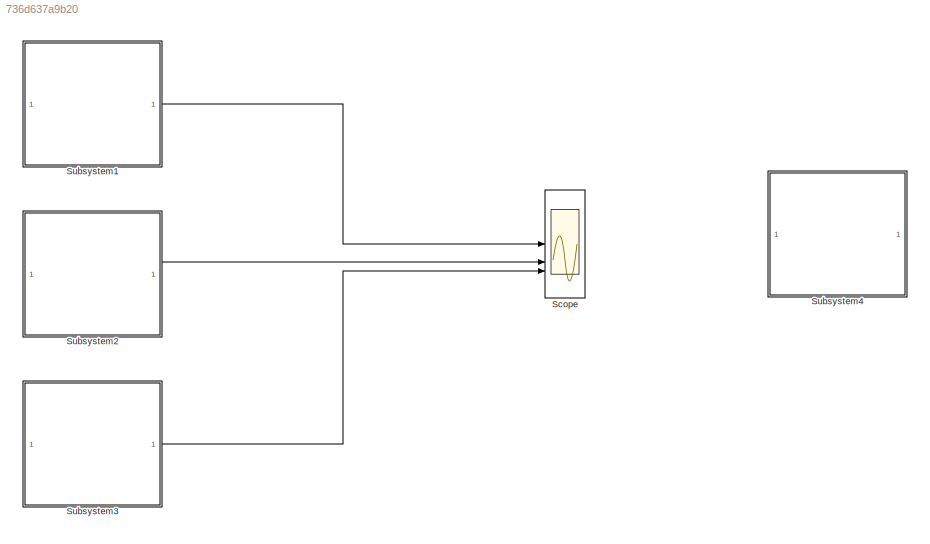
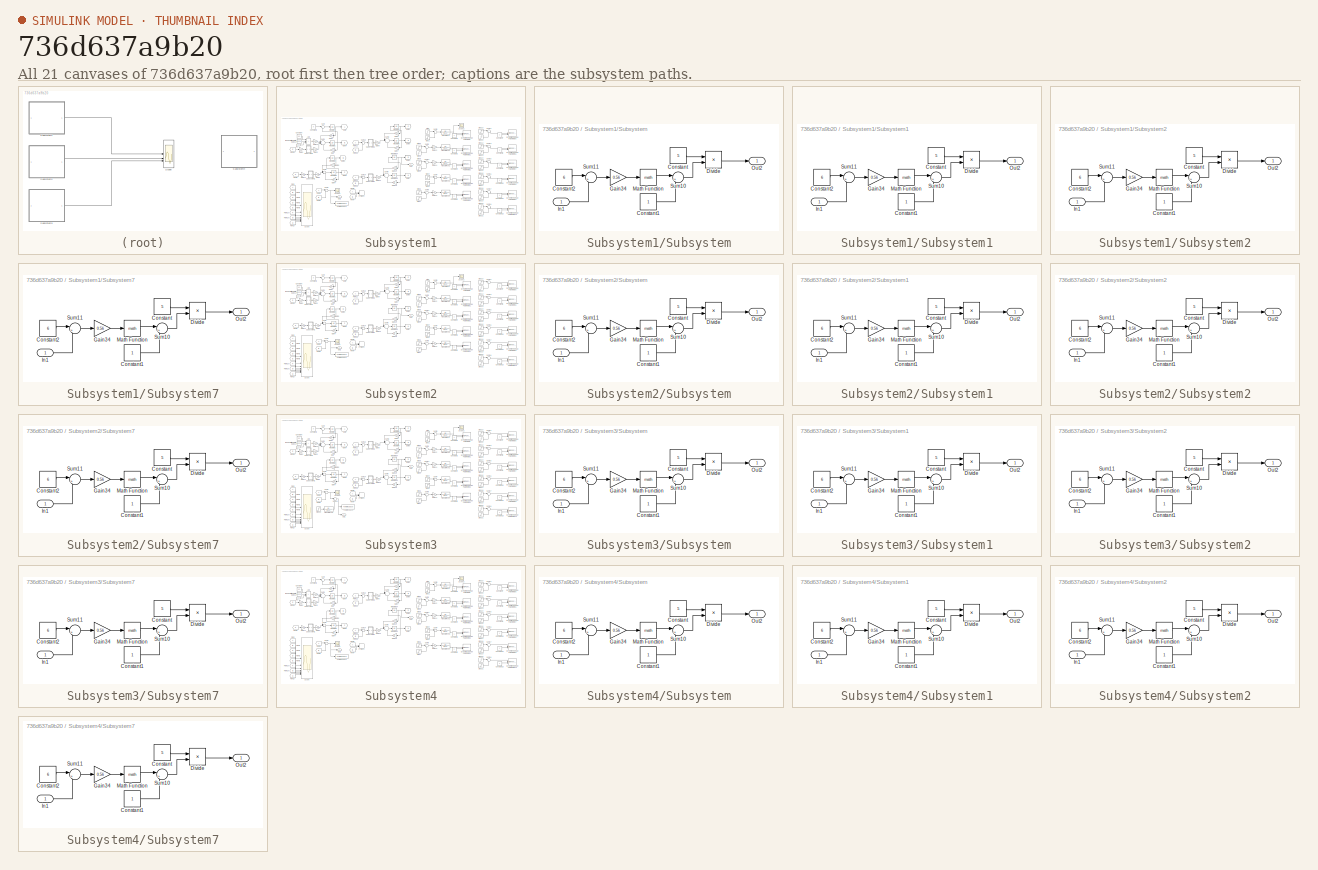
[diagram: thumbnail index - all 21 canvases of the model, root first then tree order]
MODEL slx_736d637a9b20
KIND model
CONFIG AbsTol = auto
CONFIG EnableMultiTasking = off
CONFIG FixedStep = auto
CONFIG MaxStep = auto
CONFIG MinStep = auto
CONFIG RelTol = 1e-3
CONFIG SampleTimeConstraint = Unconstrained
CONFIG SolverName = VariableStepAuto
CONFIG StartTime = 0.0
CONFIG StopTime = 11.0
BLOCK [Scope] Scope
  Floating = off
  NumInputPorts = 3
  ScopeSpecificationString = Simulink.scopes.TimeScopeBlockCfg('CurrentConfiguration', extmgr.ConfigurationSet(extmgr.Configuration('Core','General UI',true),extmgr.Configuration('Core','Source UI',true),extmgr.Configuration('Sources','WiredSimulink',true,'DataLoggingVariableName','ScopeData1'),extmgr.Configuration('Visuals','Time Domain',true,'SerializedDisplays',{struct('MinYLimReal','-0.1622','MaxYLimReal','0.91789','YLabe...<+1518ch>
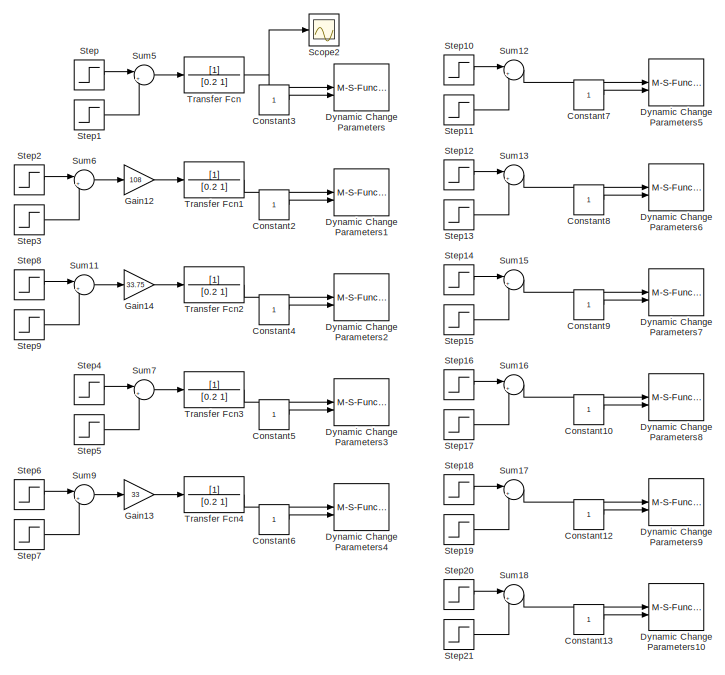
[diagram: Subsystem1 - part 1/2, right side, full height]
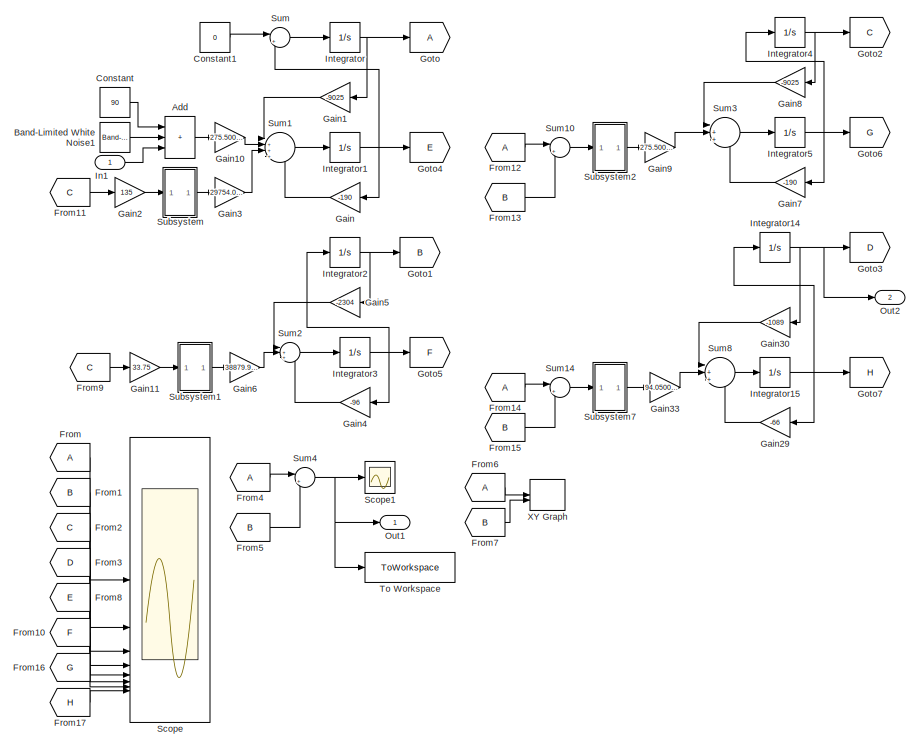
[diagram: Subsystem1 - part 2/2, left side, full height]
BLOCK [SubSystem] Subsystem1
BLOCK [Sum] Subsystem1/Add
  IconShape = rectangular
  Inputs = +++
BLOCK [Reference] Subsystem1/Band-Limited White Noise1  REF=simulink/Sources/Band-Limited
White Noise
  SourceBlock = simulink/Sources/Band-Limited\nWhite Noise
  SourceType = Band-Limited White Noise.
BLOCK [Constant] Subsystem1/Constant
  Value = 90
BLOCK [Constant] Subsystem1/Constant1
  Value = 0
BLOCK [Constant] Subsystem1/Constant10
BLOCK [Constant] Subsystem1/Constant12
BLOCK [Constant] Subsystem1/Constant13
BLOCK [Constant] Subsystem1/Constant2
BLOCK [Constant] Subsystem1/Constant3
BLOCK [Constant] Subsystem1/Constant4
BLOCK [Constant] Subsystem1/Constant5
BLOCK [Constant] Subsystem1/Constant6
BLOCK [Constant] Subsystem1/Constant7
BLOCK [Constant] Subsystem1/Constant8
BLOCK [Constant] Subsystem1/Constant9
BLOCK [M-S-Function] Subsystem1/Dynamic Change Parameters
  FunctionName = Sfun_DCP
  Parameters = block_name,par_name,sample_time,dimension
  StopFcn = close(clf)
BLOCK [M-S-Function] Subsystem1/Dynamic Change Parameters1
  FunctionName = Sfun_DCP
  Parameters = block_name,par_name,sample_time,dimension
  StopFcn = close(clf)
BLOCK [M-S-Function] Subsystem1/Dynamic Change Parameters10
  FunctionName = Sfun_DCP
  Parameters = block_name,par_name,sample_time,dimension
  StopFcn = close(clf)
BLOCK [M-S-Function] Subsystem1/Dynamic Change Parameters2
  FunctionName = Sfun_DCP
  Parameters = block_name,par_name,sample_time,dimension
  StopFcn = close(clf)
BLOCK [M-S-Function] Subsystem1/Dynamic Change Parameters3
  FunctionName = Sfun_DCP
  Parameters = block_name,par_name,sample_time,dimension
  StopFcn = close(clf)
BLOCK [M-S-Function] Subsystem1/Dynamic Change Parameters4
  FunctionName = Sfun_DCP
  Parameters = block_name,par_name,sample_time,dimension
  StopFcn = close(clf)
BLOCK [M-S-Function] Subsystem1/Dynamic Change Parameters5
  FunctionName = Sfun_DCP
  Parameters = block_name,par_name,sample_time,dimension
  StopFcn = close(clf)
BLOCK [M-S-Function] Subsystem1/Dynamic Change Parameters6
  FunctionName = Sfun_DCP
  Parameters = block_name,par_name,sample_time,dimension
  StopFcn = close(clf)
BLOCK [M-S-Function] Subsystem1/Dynamic Change Parameters7
  FunctionName = Sfun_DCP
  Parameters = block_name,par_name,sample_time,dimension
  StopFcn = close(clf)
BLOCK [M-S-Function] Subsystem1/Dynamic Change Parameters8
  FunctionName = Sfun_DCP
  Parameters = block_name,par_name,sample_time,dimension
  StopFcn = close(clf)
BLOCK [M-S-Function] Subsystem1/Dynamic Change Parameters9
  FunctionName = Sfun_DCP
  Parameters = block_name,par_name,sample_time,dimension
  StopFcn = close(clf)
BLOCK [From] Subsystem1/From
BLOCK [From] Subsystem1/From1
  GotoTag = B
BLOCK [From] Subsystem1/From10
  GotoTag = F
BLOCK [From] Subsystem1/From11
  GotoTag = C
BLOCK [From] Subsystem1/From12
BLOCK [From] Subsystem1/From13
  GotoTag = B
BLOCK [From] Subsystem1/From14
BLOCK [From] Subsystem1/From15
  GotoTag = B
BLOCK [From] Subsystem1/From16
  GotoTag = G
BLOCK [From] Subsystem1/From17
  GotoTag = H
BLOCK [From] Subsystem1/From2
  GotoTag = C
BLOCK [From] Subsystem1/From3
  GotoTag = D
BLOCK [From] Subsystem1/From4
BLOCK [From] Subsystem1/From5
  GotoTag = B
BLOCK [From] Subsystem1/From6
BLOCK [From] Subsystem1/From7
  GotoTag = B
BLOCK [From] Subsystem1/From8
  GotoTag = E
BLOCK [From] Subsystem1/From9
  GotoTag = C
BLOCK [Gain] Subsystem1/Gain
  Gain = -190
BLOCK [Gain] Subsystem1/Gain1
  Gain = -9025
BLOCK [Gain] Subsystem1/Gain10
  Gain = 275.500096235633
BLOCK [Gain] Subsystem1/Gain11
  Gain = 33.75
BLOCK [Gain] Subsystem1/Gain12
  Gain = 108
BLOCK [Gain] Subsystem1/Gain13
  Gain = 33
BLOCK [Gain] Subsystem1/Gain14
  Gain = 33.75
BLOCK [Gain] Subsystem1/Gain2
  Gain = 135
BLOCK [Gain] Subsystem1/Gain29
  Gain = -66
BLOCK [Gain] Subsystem1/Gain3
  Gain = 29754.0103934484
BLOCK [Gain] Subsystem1/Gain30
  Gain = -1089
BLOCK [Gain] Subsystem1/Gain33
  Gain = 94.0500501438536
BLOCK [Gain] Subsystem1/Gain4
  Gain = -96
BLOCK [Gain] Subsystem1/Gain5
  Gain = -2304
BLOCK [Gain] Subsystem1/Gain6
  Gain = 38879.9822216857
BLOCK [Gain] Subsystem1/Gain7
  Gain = -190
BLOCK [Gain] Subsystem1/Gain8
  Gain = -9025
BLOCK [Gain] Subsystem1/Gain9
  Gain = 275.500096235633
BLOCK [Goto] Subsystem1/Goto
BLOCK [Goto] Subsystem1/Goto1
  GotoTag = B
BLOCK [Goto] Subsystem1/Goto2
  GotoTag = C
BLOCK [Goto] Subsystem1/Goto3
  GotoTag = D
BLOCK [Goto] Subsystem1/Goto4
  GotoTag = E
BLOCK [Goto] Subsystem1/Goto5
  GotoTag = F
BLOCK [Goto] Subsystem1/Goto6
  GotoTag = G
BLOCK [Goto] Subsystem1/Goto7
  GotoTag = H
BLOCK [Inport] Subsystem1/In1
BLOCK [Integrator] Subsystem1/Integrator
BLOCK [Integrator] Subsystem1/Integrator1
BLOCK [Integrator] Subsystem1/Integrator14
BLOCK [Integrator] Subsystem1/Integrator15
BLOCK [Integrator] Subsystem1/Integrator2
BLOCK [Integrator] Subsystem1/Integrator3
BLOCK [Integrator] Subsystem1/Integrator4
BLOCK [Integrator] Subsystem1/Integrator5
BLOCK [Outport] Subsystem1/Out1
BLOCK [Outport] Subsystem1/Out2
  Port = 2
BLOCK [Scope] Subsystem1/Scope
  Floating = off
  NumInputPorts = 8
  ScopeSpecificationString = Simulink.scopes.TimeScopeBlockCfg('CurrentConfiguration', extmgr.ConfigurationSet(extmgr.Configuration('Core','General UI',true),extmgr.Configuration('Core','Source UI',true),extmgr.Configuration('Sources','WiredSimulink',true,'DataLoggingVariableName','ScopeData1'),extmgr.Configuration('Visuals','Time Domain',true,'SerializedDisplays',{struct('MinYLimReal','-0.49188','MaxYLimReal','4.42695','YLab...<+6239ch>
BLOCK [Scope] Subsystem1/Scope1
  Floating = off
  NumInputPorts = 1
  ScopeSpecificationString = Simulink.scopes.TimeScopeBlockCfg('CurrentConfiguration', extmgr.ConfigurationSet(extmgr.Configuration('Core','General UI',true),extmgr.Configuration('Core','Source UI',true),extmgr.Configuration('Sources','WiredSimulink',true),extmgr.Configuration('Visuals','Time Domain',true,'SerializedDisplays',{struct('MinYLimReal','-0.1622','MaxYLimReal','0.91789','YLabelReal','','MinYLimMag','0.00000','MaxYL...<+1375ch>
BLOCK [Scope] Subsystem1/Scope2
  Floating = off
  NumInputPorts = 1
  ScopeSpecificationString = Simulink.scopes.TimeScopeBlockCfg('CurrentConfiguration', extmgr.ConfigurationSet(extmgr.Configuration('Core','General UI',true),extmgr.Configuration('Core','Source UI',true),extmgr.Configuration('Sources','WiredSimulink',true,'DataLoggingVariableName','ScopeData2'),extmgr.Configuration('Visuals','Time Domain',true,'SerializedDisplays',{struct('MinYLimReal','-36.875','MaxYLimReal','331.87498','YLa...<+1454ch>  <repeated x4 — deduplicated; at blocks: Scope2>
BLOCK [Step] Subsystem1/Step
  After = 3.00*95
  Before = 2.35*100
  SampleTime = 0
  Time = 5.8
BLOCK [Step] Subsystem1/Step1
  After = 9.5
  SampleTime = 0
  Time = 8.7
BLOCK [Step] Subsystem1/Step10
  After = -9025
  Before = -10000
  SampleTime = 0
  Time = 5.8
BLOCK [Step] Subsystem1/Step11
  After = 0
  SampleTime = 0
  Time = 8.7
BLOCK [Step] Subsystem1/Step12
  After = -190
  Before = -200
  SampleTime = 0
  Time = 5.8
BLOCK [Step] Subsystem1/Step13
  After = 0
  SampleTime = 0
  Time = 8.7
BLOCK [Step] Subsystem1/Step14
  After = -2304
  Before = -2500
  SampleTime = 0
  Time = 5.8
BLOCK [Step] Subsystem1/Step15
  After = 0
  SampleTime = 0
  Time = 8.7
BLOCK [Step] Subsystem1/Step16
  After = -96
  Before = -100
  SampleTime = 0
  Time = 5.8
BLOCK [Step] Subsystem1/Step17
  After = 0
  SampleTime = 0
  Time = 8.7
BLOCK [Step] Subsystem1/Step18
  After = -9025
  Before = -10000
  SampleTime = 0
  Time = 5.8
BLOCK [Step] Subsystem1/Step19
  After = 0
  SampleTime = 0
  Time = 8.7
BLOCK [Step] Subsystem1/Step2
  After = 3.00*95
  Before = 2.35*100
  SampleTime = 0
  Time = 5.8
BLOCK [Step] Subsystem1/Step20
  After = -190
  Before = -200
  SampleTime = 0
  Time = 5.8
BLOCK [Step] Subsystem1/Step21
  After = 0
  SampleTime = 0
  Time = 8.7
BLOCK [Step] Subsystem1/Step3
  After = 9.5
  SampleTime = 0
  Time = 8.7
BLOCK [Step] Subsystem1/Step4
  After = 3.00*95
  Before = 2.35*100
  SampleTime = 0
  Time = 5.8
BLOCK [Step] Subsystem1/Step5
  After = 9.5
  SampleTime = 0
  Time = 8.7
BLOCK [Step] Subsystem1/Step6
  After = 3.00
  Before = 2.35
  SampleTime = 0
  Time = 5.8
BLOCK [Step] Subsystem1/Step7
  After = 0.15
  SampleTime = 0
  Time = 8.7
BLOCK [Step] Subsystem1/Step8
  After = 22*50
  Before = 22*50
  SampleTime = 0
  Time = 20
BLOCK [Step] Subsystem1/Step9
  After = 52
  SampleTime = 0
  Time = 8.7
BLOCK [SubSystem] Subsystem1/Subsystem
BLOCK [Constant] Subsystem1/Subsystem/Constant
  Value = 5
BLOCK [Constant] Subsystem1/Subsystem/Constant1
BLOCK [Constant] Subsystem1/Subsystem/Constant2
  Value = 6
BLOCK [Product] Subsystem1/Subsystem/Divide
  Inputs = */
BLOCK [Gain] Subsystem1/Subsystem/Gain34
  Gain = 0.56
BLOCK [Inport] Subsystem1/Subsystem/In1
BLOCK [Math] Subsystem1/Subsystem/Math Function
BLOCK [Outport] Subsystem1/Subsystem/Out2
BLOCK [Sum] Subsystem1/Subsystem/Sum10
  Inputs = |++
BLOCK [Sum] Subsystem1/Subsystem/Sum11
  Inputs = |+-
BLOCK [SubSystem] Subsystem1/Subsystem1
BLOCK [Constant] Subsystem1/Subsystem1/Constant
  Value = 5
BLOCK [Constant] Subsystem1/Subsystem1/Constant1
BLOCK [Constant] Subsystem1/Subsystem1/Constant2
  Value = 6
BLOCK [Product] Subsystem1/Subsystem1/Divide
  Inputs = */
BLOCK [Gain] Subsystem1/Subsystem1/Gain34
  Gain = 0.56
BLOCK [Inport] Subsystem1/Subsystem1/In1
BLOCK [Math] Subsystem1/Subsystem1/Math Function
BLOCK [Outport] Subsystem1/Subsystem1/Out2
BLOCK [Sum] Subsystem1/Subsystem1/Sum10
  Inputs = |++
BLOCK [Sum] Subsystem1/Subsystem1/Sum11
  Inputs = |+-
BLOCK [SubSystem] Subsystem1/Subsystem2
BLOCK [Constant] Subsystem1/Subsystem2/Constant
  Value = 5
BLOCK [Constant] Subsystem1/Subsystem2/Constant1
BLOCK [Constant] Subsystem1/Subsystem2/Constant2
  Value = 6
BLOCK [Product] Subsystem1/Subsystem2/Divide
  Inputs = */
BLOCK [Gain] Subsystem1/Subsystem2/Gain34
  Gain = 0.56
BLOCK [Inport] Subsystem1/Subsystem2/In1
BLOCK [Math] Subsystem1/Subsystem2/Math Function
BLOCK [Outport] Subsystem1/Subsystem2/Out2
BLOCK [Sum] Subsystem1/Subsystem2/Sum10
  Inputs = |++
BLOCK [Sum] Subsystem1/Subsystem2/Sum11
  Inputs = |+-
BLOCK [SubSystem] Subsystem1/Subsystem7
BLOCK [Constant] Subsystem1/Subsystem7/Constant
  Value = 5
BLOCK [Constant] Subsystem1/Subsystem7/Constant1
BLOCK [Constant] Subsystem1/Subsystem7/Constant2
  Value = 6
BLOCK [Product] Subsystem1/Subsystem7/Divide
  Inputs = */
BLOCK [Gain] Subsystem1/Subsystem7/Gain34
  Gain = 0.56
BLOCK [Inport] Subsystem1/Subsystem7/In1
BLOCK [Math] Subsystem1/Subsystem7/Math Function
BLOCK [Outport] Subsystem1/Subsystem7/Out2
BLOCK [Sum] Subsystem1/Subsystem7/Sum10
  Inputs = |++
BLOCK [Sum] Subsystem1/Subsystem7/Sum11
  Inputs = |+-
BLOCK [Sum] Subsystem1/Sum
  Inputs = |++
BLOCK [Sum] Subsystem1/Sum1
  Inputs = |++++
BLOCK [Sum] Subsystem1/Sum10
  Inputs = |+-
BLOCK [Sum] Subsystem1/Sum11
  Inputs = |++
BLOCK [Sum] Subsystem1/Sum12
  Inputs = |++
BLOCK [Sum] Subsystem1/Sum13
  Inputs = |++
BLOCK [Sum] Subsystem1/Sum14
  Inputs = |+-
BLOCK [Sum] Subsystem1/Sum15
  Inputs = |++
BLOCK [Sum] Subsystem1/Sum16
  Inputs = |++
BLOCK [Sum] Subsystem1/Sum17
  Inputs = |++
BLOCK [Sum] Subsystem1/Sum18
  Inputs = |++
BLOCK [Sum] Subsystem1/Sum2
  Inputs = |+++
BLOCK [Sum] Subsystem1/Sum3
  Inputs = |+++
BLOCK [Sum] Subsystem1/Sum4
  Inputs = |+-
BLOCK [Sum] Subsystem1/Sum5
  Inputs = |+-
BLOCK [Sum] Subsystem1/Sum6
  Inputs = |+-
BLOCK [Sum] Subsystem1/Sum7
  Inputs = |+-
BLOCK [Sum] Subsystem1/Sum8
  Inputs = |+++
BLOCK [Sum] Subsystem1/Sum9
  Inputs = |+-
BLOCK [ToWorkspace] Subsystem1/To Workspace
  FixptAsFi = on
  MaxDataPoints = inf
  SampleTime = -1
  SaveFormat = Timeseries
  VariableName = simout1
BLOCK [TransferFcn] Subsystem1/Transfer Fcn
  Denominator = [0.2 1]
BLOCK [TransferFcn] Subsystem1/Transfer Fcn1
  Denominator = [0.2 1]
BLOCK [TransferFcn] Subsystem1/Transfer Fcn2
  Denominator = [0.2 1]
BLOCK [TransferFcn] Subsystem1/Transfer Fcn3
  Denominator = [0.2 1]
BLOCK [TransferFcn] Subsystem1/Transfer Fcn4
  Denominator = [0.2 1]
BLOCK [Record] Subsystem1/XY Graph
  CompatibilityTag = XY
  FileSettingsInternal = {"entries":[{"content":{"excelSettings":{"content":{},"type":"Streamout.ExcelSettings"}},"type":"Streamout.FileSettingStorage","uuid":""}],"packageUris":["http:\/\/schema.mathworks.com\/mf0\/streamout_blocks\/R2020a"],"version":"1.0"}  <repeated x4 — deduplicated; at blocks: XY Graph>
  Layout = [1 1]
  SignalsInternal = {"entries":[{"content":{"signals":[{"content":{"blockPath":[],"dimensions":[1],"domain":"","lineColor":"#77ac30","port":1,"sid":[""],"signalID":93784,"signalName":"From6"},"type":"RecordBlkView.Signal","uuid":""},{"content":{"blockPath":[],"dimensions":[1],"domain":"","lineColor":"#4dbeee","port":2,"sid":[""],"signalID":93788,"signalName":"From7"},"type":"RecordBlkView.Signal","uuid":""}]},"type":...<+136ch>
  VisualizationBindings = {"xyplotplugin":{"info":[{"series":[],"subplotID":1}]}}
BLOCK [SubSystem] Subsystem2
BLOCK [Sum] Subsystem2/Add
  IconShape = rectangular
  Inputs = +++
BLOCK [Reference] Subsystem2/Band-Limited White Noise1  REF=simulink/Sources/Band-Limited
White Noise
  SourceBlock = simulink/Sources/Band-Limited\nWhite Noise
  SourceType = Band-Limited White Noise.
BLOCK [Constant] Subsystem2/Constant
  Value = 90
BLOCK [Constant] Subsystem2/Constant1
  Value = 0
BLOCK [Constant] Subsystem2/Constant10
BLOCK [Constant] Subsystem2/Constant12
BLOCK [Constant] Subsystem2/Constant13
BLOCK [Constant] Subsystem2/Constant2
BLOCK [Constant] Subsystem2/Constant3
BLOCK [Constant] Subsystem2/Constant4
BLOCK [Constant] Subsystem2/Constant5
BLOCK [Constant] Subsystem2/Constant6
BLOCK [Constant] Subsystem2/Constant7
BLOCK [Constant] Subsystem2/Constant8
BLOCK [Constant] Subsystem2/Constant9
BLOCK [M-S-Function] Subsystem2/Dynamic Change Parameters
  FunctionName = Sfun_DCP
  Parameters = block_name,par_name,sample_time,dimension
  StopFcn = close(clf)
BLOCK [M-S-Function] Subsystem2/Dynamic Change Parameters1
  FunctionName = Sfun_DCP
  Parameters = block_name,par_name,sample_time,dimension
  StopFcn = close(clf)
BLOCK [M-S-Function] Subsystem2/Dynamic Change Parameters10
  FunctionName = Sfun_DCP
  Parameters = block_name,par_name,sample_time,dimension
  StopFcn = close(clf)
BLOCK [M-S-Function] Subsystem2/Dynamic Change Parameters2
  FunctionName = Sfun_DCP
  Parameters = block_name,par_name,sample_time,dimension
  StopFcn = close(clf)
BLOCK [M-S-Function] Subsystem2/Dynamic Change Parameters3
  FunctionName = Sfun_DCP
  Parameters = block_name,par_name,sample_time,dimension
  StopFcn = close(clf)
BLOCK [M-S-Function] Subsystem2/Dynamic Change Parameters4
  FunctionName = Sfun_DCP
  Parameters = block_name,par_name,sample_time,dimension
  StopFcn = close(clf)
BLOCK [M-S-Function] Subsystem2/Dynamic Change Parameters5
  FunctionName = Sfun_DCP
  Parameters = block_name,par_name,sample_time,dimension
  StopFcn = close(clf)
BLOCK [M-S-Function] Subsystem2/Dynamic Change Parameters6
  FunctionName = Sfun_DCP
  Parameters = block_name,par_name,sample_time,dimension
  StopFcn = close(clf)
BLOCK [M-S-Function] Subsystem2/Dynamic Change Parameters7
  FunctionName = Sfun_DCP
  Parameters = block_name,par_name,sample_time,dimension
  StopFcn = close(clf)
BLOCK [M-S-Function] Subsystem2/Dynamic Change Parameters8
  FunctionName = Sfun_DCP
  Parameters = block_name,par_name,sample_time,dimension
  StopFcn = close(clf)
BLOCK [M-S-Function] Subsystem2/Dynamic Change Parameters9
  FunctionName = Sfun_DCP
  Parameters = block_name,par_name,sample_time,dimension
  StopFcn = close(clf)
BLOCK [From] Subsystem2/From
BLOCK [From] Subsystem2/From1
  GotoTag = B
BLOCK [From] Subsystem2/From10
  GotoTag = F
BLOCK [From] Subsystem2/From11
  GotoTag = C
BLOCK [From] Subsystem2/From12
BLOCK [From] Subsystem2/From13
  GotoTag = B
BLOCK [From] Subsystem2/From14
BLOCK [From] Subsystem2/From15
  GotoTag = B
BLOCK [From] Subsystem2/From16
  GotoTag = G
BLOCK [From] Subsystem2/From17
  GotoTag = H
BLOCK [From] Subsystem2/From2
  GotoTag = C
BLOCK [From] Subsystem2/From3
  GotoTag = D
BLOCK [From] Subsystem2/From4
BLOCK [From] Subsystem2/From5
  GotoTag = B
BLOCK [From] Subsystem2/From6
BLOCK [From] Subsystem2/From7
  GotoTag = B
BLOCK [From] Subsystem2/From8
  GotoTag = E
BLOCK [From] Subsystem2/From9
  GotoTag = C
BLOCK [Gain] Subsystem2/Gain
  Gain = -200
BLOCK [Gain] Subsystem2/Gain1
  Gain = -10000
BLOCK [Gain] Subsystem2/Gain10
  Gain = 250.000083508336
BLOCK [Gain] Subsystem2/Gain11
  Gain = 33.75
BLOCK [Gain] Subsystem2/Gain12
  Gain = 108
BLOCK [Gain] Subsystem2/Gain13
  Gain = 33
BLOCK [Gain] Subsystem2/Gain14
  Gain = 33.75
BLOCK [Gain] Subsystem2/Gain2
  Gain = 135
BLOCK [Gain] Subsystem2/Gain29
  Gain = -66
BLOCK [Gain] Subsystem2/Gain3
  Gain = 27000.0090189002
BLOCK [Gain] Subsystem2/Gain30
  Gain = -1089
BLOCK [Gain] Subsystem2/Gain33
  Gain = 82.5000275577507
BLOCK [Gain] Subsystem2/Gain4
  Gain = -100
BLOCK [Gain] Subsystem2/Gain5
  Gain = -2500
BLOCK [Gain] Subsystem2/Gain6
  Gain = 37124.9999999995
BLOCK [Gain] Subsystem2/Gain7
  Gain = -200
BLOCK [Gain] Subsystem2/Gain8
  Gain = -10000
BLOCK [Gain] Subsystem2/Gain9
  Gain = 250.000083508336
BLOCK [Goto] Subsystem2/Goto
BLOCK [Goto] Subsystem2/Goto1
  GotoTag = B
BLOCK [Goto] Subsystem2/Goto2
  GotoTag = C
BLOCK [Goto] Subsystem2/Goto3
  GotoTag = D
BLOCK [Goto] Subsystem2/Goto4
  GotoTag = E
BLOCK [Goto] Subsystem2/Goto5
  GotoTag = F
BLOCK [Goto] Subsystem2/Goto6
  GotoTag = G
BLOCK [Goto] Subsystem2/Goto7
  GotoTag = H
BLOCK [Inport] Subsystem2/In1
BLOCK [Integrator] Subsystem2/Integrator
BLOCK [Integrator] Subsystem2/Integrator1
BLOCK [Integrator] Subsystem2/Integrator14
BLOCK [Integrator] Subsystem2/Integrator15
BLOCK [Integrator] Subsystem2/Integrator2
BLOCK [Integrator] Subsystem2/Integrator3
BLOCK [Integrator] Subsystem2/Integrator4
BLOCK [Integrator] Subsystem2/Integrator5
BLOCK [Outport] Subsystem2/Out1
BLOCK [Outport] Subsystem2/Out2
  Port = 2
BLOCK [Scope] Subsystem2/Scope
  Floating = off
  NumInputPorts = 8
  ScopeSpecificationString = Simulink.scopes.TimeScopeBlockCfg('CurrentConfiguration', extmgr.ConfigurationSet(extmgr.Configuration('Core','General UI',true),extmgr.Configuration('Core','Source UI',true),extmgr.Configuration('Sources','WiredSimulink',true,'DataLoggingVariableName','ScopeData1'),extmgr.Configuration('Visuals','Time Domain',true,'SerializedDisplays',{struct('MinYLimReal','-0.38606','MaxYLimReal','3.47458','YLab...<+6241ch>
BLOCK [Scope] Subsystem2/Scope1
  Floating = off
  NumInputPorts = 1
  ScopeSpecificationString = Simulink.scopes.TimeScopeBlockCfg('CurrentConfiguration', extmgr.ConfigurationSet(extmgr.Configuration('Core','General UI',true),extmgr.Configuration('Core','Source UI',true),extmgr.Configuration('Sources','WiredSimulink',true),extmgr.Configuration('Visuals','Time Domain',true,'SerializedDisplays',{struct('MinYLimReal','-0.10481','MaxYLimReal','0.40141','YLabelReal','','MinYLimMag','0.00000','MaxY...<+1401ch>
BLOCK [Scope] Subsystem2/Scope2
  Floating = off
  NumInputPorts = 1
BLOCK [Step] Subsystem2/Step
  After = 2.55*100
  Before = 2.35*100
  SampleTime = 0
  Time = 5.9
BLOCK [Step] Subsystem2/Step1
  After = 0.05*100
  SampleTime = 0
  Time = 8.8
BLOCK [Step] Subsystem2/Step10
  After = -10000
  Before = -10000
  SampleTime = 0
  Time = 5.8
BLOCK [Step] Subsystem2/Step11
  After = 0
  SampleTime = 0
  Time = 8.8
BLOCK [Step] Subsystem2/Step12
  After = -200
  Before = -200
  SampleTime = 0
  Time = 5.8
BLOCK [Step] Subsystem2/Step13
  After = 0
  SampleTime = 0
  Time = 8.8
BLOCK [Step] Subsystem2/Step14
  After = -2500
  Before = -2500
  SampleTime = 0
  Time = 5.8
BLOCK [Step] Subsystem2/Step15
  After = 0
  SampleTime = 0
  Time = 8.8
BLOCK [Step] Subsystem2/Step16
  After = -100
  Before = -100
  SampleTime = 0
  Time = 5.8
BLOCK [Step] Subsystem2/Step17
  After = 0
  SampleTime = 0
  Time = 8.8
BLOCK [Step] Subsystem2/Step18
  After = -10000
  Before = -10000
  SampleTime = 0
  Time = 5.8
BLOCK [Step] Subsystem2/Step19
  After = 0
  SampleTime = 0
  Time = 8.8
BLOCK [Step] Subsystem2/Step2
  After = 2.55*100
  Before = 2.35*100
  SampleTime = 0
  Time = 5.9
BLOCK [Step] Subsystem2/Step20
  After = -200
  Before = -200
  SampleTime = 0
  Time = 5.8
BLOCK [Step] Subsystem2/Step21
  After = 0
  SampleTime = 0
  Time = 8.8
BLOCK [Step] Subsystem2/Step3
  After = 0.05*100
  SampleTime = 0
  Time = 8.8
BLOCK [Step] Subsystem2/Step4
  After = 2.55*100
  Before = 2.35*100
  SampleTime = 0
  Time = 5.9
BLOCK [Step] Subsystem2/Step5
  After = 0.05*100
  SampleTime = 0
  Time = 8.8
BLOCK [Step] Subsystem2/Step6
  After = 2.55
  Before = 2.35
  SampleTime = 0
  Time = 5.9
BLOCK [Step] Subsystem2/Step7
  After = 0.05
  SampleTime = 0
  Time = 8.8
BLOCK [Step] Subsystem2/Step8
  After = 22*50
  Before = 22*50
  SampleTime = 0
  Time = 20
BLOCK [Step] Subsystem2/Step9
  After = 22*50
  SampleTime = 0
  Time = 20
BLOCK [SubSystem] Subsystem2/Subsystem
BLOCK [Constant] Subsystem2/Subsystem/Constant
  Value = 5
BLOCK [Constant] Subsystem2/Subsystem/Constant1
BLOCK [Constant] Subsystem2/Subsystem/Constant2
  Value = 6
BLOCK [Product] Subsystem2/Subsystem/Divide
  Inputs = */
BLOCK [Gain] Subsystem2/Subsystem/Gain34
  Gain = 0.56
BLOCK [Inport] Subsystem2/Subsystem/In1
BLOCK [Math] Subsystem2/Subsystem/Math Function
BLOCK [Outport] Subsystem2/Subsystem/Out2
BLOCK [Sum] Subsystem2/Subsystem/Sum10
  Inputs = |++
BLOCK [Sum] Subsystem2/Subsystem/Sum11
  Inputs = |+-
BLOCK [SubSystem] Subsystem2/Subsystem1
BLOCK [Constant] Subsystem2/Subsystem1/Constant
  Value = 5
BLOCK [Constant] Subsystem2/Subsystem1/Constant1
BLOCK [Constant] Subsystem2/Subsystem1/Constant2
  Value = 6
BLOCK [Product] Subsystem2/Subsystem1/Divide
  Inputs = */
BLOCK [Gain] Subsystem2/Subsystem1/Gain34
  Gain = 0.56
BLOCK [Inport] Subsystem2/Subsystem1/In1
BLOCK [Math] Subsystem2/Subsystem1/Math Function
BLOCK [Outport] Subsystem2/Subsystem1/Out2
BLOCK [Sum] Subsystem2/Subsystem1/Sum10
  Inputs = |++
BLOCK [Sum] Subsystem2/Subsystem1/Sum11
  Inputs = |+-
BLOCK [SubSystem] Subsystem2/Subsystem2
BLOCK [Constant] Subsystem2/Subsystem2/Constant
  Value = 5
BLOCK [Constant] Subsystem2/Subsystem2/Constant1
BLOCK [Constant] Subsystem2/Subsystem2/Constant2
  Value = 6
BLOCK [Product] Subsystem2/Subsystem2/Divide
  Inputs = */
BLOCK [Gain] Subsystem2/Subsystem2/Gain34
  Gain = 0.56
BLOCK [Inport] Subsystem2/Subsystem2/In1
BLOCK [Math] Subsystem2/Subsystem2/Math Function
BLOCK [Outport] Subsystem2/Subsystem2/Out2
BLOCK [Sum] Subsystem2/Subsystem2/Sum10
  Inputs = |++
BLOCK [Sum] Subsystem2/Subsystem2/Sum11
  Inputs = |+-
BLOCK [SubSystem] Subsystem2/Subsystem7
BLOCK [Constant] Subsystem2/Subsystem7/Constant
  Value = 5
BLOCK [Constant] Subsystem2/Subsystem7/Constant1
BLOCK [Constant] Subsystem2/Subsystem7/Constant2
  Value = 6
BLOCK [Product] Subsystem2/Subsystem7/Divide
  Inputs = */
BLOCK [Gain] Subsystem2/Subsystem7/Gain34
  Gain = 0.56
BLOCK [Inport] Subsystem2/Subsystem7/In1
BLOCK [Math] Subsystem2/Subsystem7/Math Function
BLOCK [Outport] Subsystem2/Subsystem7/Out2
BLOCK [Sum] Subsystem2/Subsystem7/Sum10
  Inputs = |++
BLOCK [Sum] Subsystem2/Subsystem7/Sum11
  Inputs = |+-
BLOCK [Sum] Subsystem2/Sum
  Inputs = |++
BLOCK [Sum] Subsystem2/Sum1
  Inputs = |++++
BLOCK [Sum] Subsystem2/Sum10
  Inputs = |+-
BLOCK [Sum] Subsystem2/Sum11
  Inputs = |+-
BLOCK [Sum] Subsystem2/Sum12
  Inputs = |+-
BLOCK [Sum] Subsystem2/Sum13
  Inputs = |+-
BLOCK [Sum] Subsystem2/Sum14
  Inputs = |+-
BLOCK [Sum] Subsystem2/Sum15
  Inputs = |+-
BLOCK [Sum] Subsystem2/Sum16
  Inputs = |+-
BLOCK [Sum] Subsystem2/Sum17
  Inputs = |+-
BLOCK [Sum] Subsystem2/Sum18
  Inputs = |+-
BLOCK [Sum] Subsystem2/Sum2
  Inputs = |+++
BLOCK [Sum] Subsystem2/Sum3
  Inputs = |+++
BLOCK [Sum] Subsystem2/Sum4
  Inputs = |+-
BLOCK [Sum] Subsystem2/Sum5
  Inputs = |+-
BLOCK [Sum] Subsystem2/Sum6
  Inputs = |+-
BLOCK [Sum] Subsystem2/Sum7
  Inputs = |+-
BLOCK [Sum] Subsystem2/Sum8
  Inputs = |+++
BLOCK [Sum] Subsystem2/Sum9
  Inputs = |+-
BLOCK [ToWorkspace] Subsystem2/To Workspace
  FixptAsFi = on
  MaxDataPoints = inf
  SampleTime = -1
  SaveFormat = Timeseries
  VariableName = simout2
BLOCK [TransferFcn] Subsystem2/Transfer Fcn
  Denominator = [0.2 1]
BLOCK [TransferFcn] Subsystem2/Transfer Fcn1
  Denominator = [0.2 1]
BLOCK [TransferFcn] Subsystem2/Transfer Fcn2
  Denominator = [0.2 1]
BLOCK [TransferFcn] Subsystem2/Transfer Fcn3
  Denominator = [0.2 1]
BLOCK [TransferFcn] Subsystem2/Transfer Fcn4
  Denominator = [0.2 1]
BLOCK [Record] Subsystem2/XY Graph
  CompatibilityTag = XY
  Layout = [1 1]
  SignalsInternal = {"entries":[{"content":{"signals":[{"content":{"blockPath":[],"dimensions":[1],"domain":"","lineColor":"#139fff","port":1,"sid":[""],"signalID":93796,"signalName":"From6"},"type":"RecordBlkView.Signal","uuid":""},{"content":{"blockPath":[],"dimensions":[1],"domain":"","lineColor":"#ff6929","port":2,"sid":[""],"signalID":93800,"signalName":"From7"},"type":"RecordBlkView.Signal","uuid":""}]},"type":...<+136ch>
  VisualizationBindings = {"xyplotplugin":{"info":[{"series":[],"subplotID":1}]}}
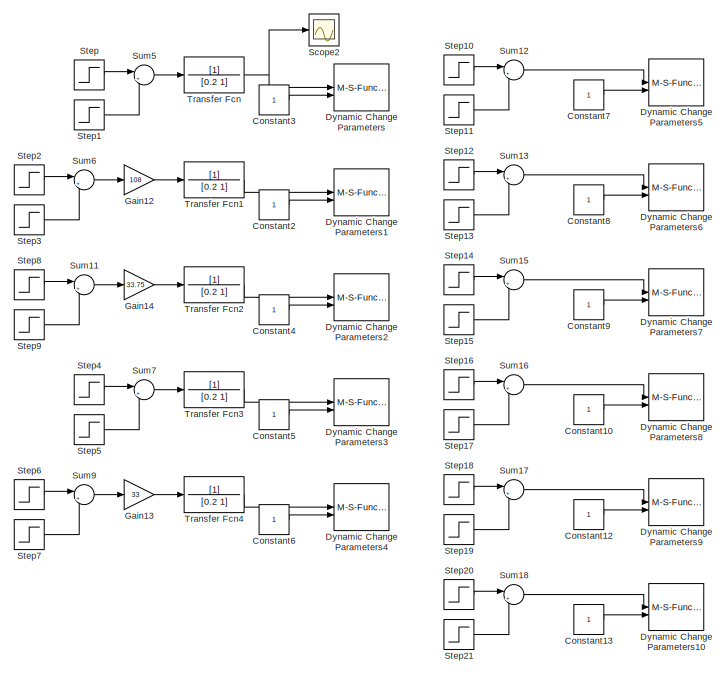
[diagram: Subsystem3 - part 1/2, right side, full height]
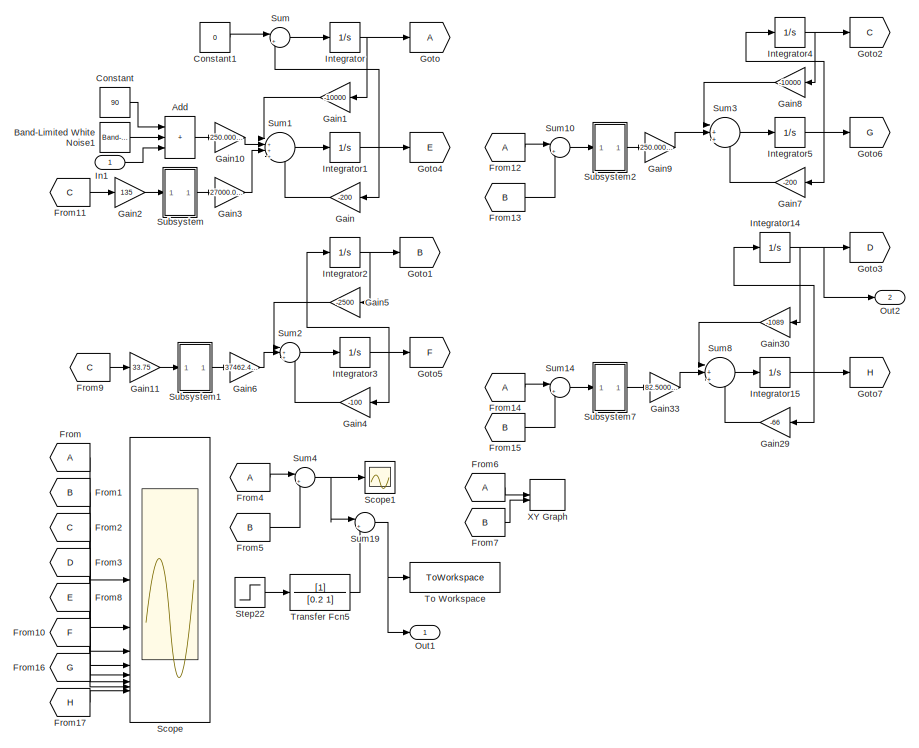
[diagram: Subsystem3 - part 2/2, left side, full height]
BLOCK [SubSystem] Subsystem3
BLOCK [Sum] Subsystem3/Add
  IconShape = rectangular
  Inputs = +++
BLOCK [Reference] Subsystem3/Band-Limited White Noise1  REF=simulink/Sources/Band-Limited
White Noise
  SourceBlock = simulink/Sources/Band-Limited\nWhite Noise
  SourceType = Band-Limited White Noise.
BLOCK [Constant] Subsystem3/Constant
  Value = 90
BLOCK [Constant] Subsystem3/Constant1
  Value = 0
BLOCK [Constant] Subsystem3/Constant10
BLOCK [Constant] Subsystem3/Constant12
BLOCK [Constant] Subsystem3/Constant13
BLOCK [Constant] Subsystem3/Constant2
BLOCK [Constant] Subsystem3/Constant3
BLOCK [Constant] Subsystem3/Constant4
BLOCK [Constant] Subsystem3/Constant5
BLOCK [Constant] Subsystem3/Constant6
BLOCK [Constant] Subsystem3/Constant7
BLOCK [Constant] Subsystem3/Constant8
BLOCK [Constant] Subsystem3/Constant9
BLOCK [M-S-Function] Subsystem3/Dynamic Change Parameters
  FunctionName = Sfun_DCP
  Parameters = block_name,par_name,sample_time,dimension
  StopFcn = close(clf)
BLOCK [M-S-Function] Subsystem3/Dynamic Change Parameters1
  FunctionName = Sfun_DCP
  Parameters = block_name,par_name,sample_time,dimension
  StopFcn = close(clf)
BLOCK [M-S-Function] Subsystem3/Dynamic Change Parameters10
  FunctionName = Sfun_DCP
  Parameters = block_name,par_name,sample_time,dimension
  StopFcn = close(clf)
BLOCK [M-S-Function] Subsystem3/Dynamic Change Parameters2
  FunctionName = Sfun_DCP
  Parameters = block_name,par_name,sample_time,dimension
  StopFcn = close(clf)
BLOCK [M-S-Function] Subsystem3/Dynamic Change Parameters3
  FunctionName = Sfun_DCP
  Parameters = block_name,par_name,sample_time,dimension
  StopFcn = close(clf)
BLOCK [M-S-Function] Subsystem3/Dynamic Change Parameters4
  FunctionName = Sfun_DCP
  Parameters = block_name,par_name,sample_time,dimension
  StopFcn = close(clf)
BLOCK [M-S-Function] Subsystem3/Dynamic Change Parameters5
  FunctionName = Sfun_DCP
  Parameters = block_name,par_name,sample_time,dimension
  StopFcn = close(clf)
BLOCK [M-S-Function] Subsystem3/Dynamic Change Parameters6
  FunctionName = Sfun_DCP
  Parameters = block_name,par_name,sample_time,dimension
  StopFcn = close(clf)
BLOCK [M-S-Function] Subsystem3/Dynamic Change Parameters7
  FunctionName = Sfun_DCP
  Parameters = block_name,par_name,sample_time,dimension
  StopFcn = close(clf)
BLOCK [M-S-Function] Subsystem3/Dynamic Change Parameters8
  FunctionName = Sfun_DCP
  Parameters = block_name,par_name,sample_time,dimension
  StopFcn = close(clf)
BLOCK [M-S-Function] Subsystem3/Dynamic Change Parameters9
  FunctionName = Sfun_DCP
  Parameters = block_name,par_name,sample_time,dimension
  StopFcn = close(clf)
BLOCK [From] Subsystem3/From
BLOCK [From] Subsystem3/From1
  GotoTag = B
BLOCK [From] Subsystem3/From10
  GotoTag = F
BLOCK [From] Subsystem3/From11
  GotoTag = C
BLOCK [From] Subsystem3/From12
BLOCK [From] Subsystem3/From13
  GotoTag = B
BLOCK [From] Subsystem3/From14
BLOCK [From] Subsystem3/From15
  GotoTag = B
BLOCK [From] Subsystem3/From16
  GotoTag = G
BLOCK [From] Subsystem3/From17
  GotoTag = H
BLOCK [From] Subsystem3/From2
  GotoTag = C
BLOCK [From] Subsystem3/From3
  GotoTag = D
BLOCK [From] Subsystem3/From4
BLOCK [From] Subsystem3/From5
  GotoTag = B
BLOCK [From] Subsystem3/From6
BLOCK [From] Subsystem3/From7
  GotoTag = B
BLOCK [From] Subsystem3/From8
  GotoTag = E
BLOCK [From] Subsystem3/From9
  GotoTag = C
BLOCK [Gain] Subsystem3/Gain
  Gain = -200
BLOCK [Gain] Subsystem3/Gain1
  Gain = -10000
BLOCK [Gain] Subsystem3/Gain10
  Gain = 250.000083508336
BLOCK [Gain] Subsystem3/Gain11
  Gain = 33.75
BLOCK [Gain] Subsystem3/Gain12
  Gain = 108
BLOCK [Gain] Subsystem3/Gain13
  Gain = 33
BLOCK [Gain] Subsystem3/Gain14
  Gain = 33.75
BLOCK [Gain] Subsystem3/Gain2
  Gain = 135
BLOCK [Gain] Subsystem3/Gain29
  Gain = -66
BLOCK [Gain] Subsystem3/Gain3
  Gain = 27000.0090189002
BLOCK [Gain] Subsystem3/Gain30
  Gain = -1089
BLOCK [Gain] Subsystem3/Gain33
  Gain = 82.5000275577507
BLOCK [Gain] Subsystem3/Gain4
  Gain = -100
BLOCK [Gain] Subsystem3/Gain5
  Gain = -2500
BLOCK [Gain] Subsystem3/Gain6
  Gain = 37462.4999999971
BLOCK [Gain] Subsystem3/Gain7
  Gain = -200
BLOCK [Gain] Subsystem3/Gain8
  Gain = -10000
BLOCK [Gain] Subsystem3/Gain9
  Gain = 250.000083508336
BLOCK [Goto] Subsystem3/Goto
BLOCK [Goto] Subsystem3/Goto1
  GotoTag = B
BLOCK [Goto] Subsystem3/Goto2
  GotoTag = C
BLOCK [Goto] Subsystem3/Goto3
  GotoTag = D
BLOCK [Goto] Subsystem3/Goto4
  GotoTag = E
BLOCK [Goto] Subsystem3/Goto5
  GotoTag = F
BLOCK [Goto] Subsystem3/Goto6
  GotoTag = G
BLOCK [Goto] Subsystem3/Goto7
  GotoTag = H
BLOCK [Inport] Subsystem3/In1
BLOCK [Integrator] Subsystem3/Integrator
BLOCK [Integrator] Subsystem3/Integrator1
BLOCK [Integrator] Subsystem3/Integrator14
BLOCK [Integrator] Subsystem3/Integrator15
BLOCK [Integrator] Subsystem3/Integrator2
BLOCK [Integrator] Subsystem3/Integrator3
BLOCK [Integrator] Subsystem3/Integrator4
BLOCK [Integrator] Subsystem3/Integrator5
BLOCK [Outport] Subsystem3/Out1
BLOCK [Outport] Subsystem3/Out2
  Port = 2
BLOCK [Scope] Subsystem3/Scope
  Floating = off
  NumInputPorts = 8
  ScopeSpecificationString = Simulink.scopes.TimeScopeBlockCfg('CurrentConfiguration', extmgr.ConfigurationSet(extmgr.Configuration('Core','General UI',true),extmgr.Configuration('Core','Source UI',true),extmgr.Configuration('Sources','WiredSimulink',true,'DataLoggingVariableName','ScopeData1'),extmgr.Configuration('Visuals','Time Domain',true,'SerializedDisplays',{struct('MinYLimReal','-0.45477','MaxYLimReal','4.09289','YLab...<+6237ch>
BLOCK [Scope] Subsystem3/Scope1
  Floating = off
  NumInputPorts = 1
  ScopeSpecificationString = Simulink.scopes.TimeScopeBlockCfg('CurrentConfiguration', extmgr.ConfigurationSet(extmgr.Configuration('Core','General UI',true),extmgr.Configuration('Core','Source UI',true),extmgr.Configuration('Sources','WiredSimulink',true),extmgr.Configuration('Visuals','Time Domain',true,'SerializedDisplays',{struct('MinYLimReal','-0.46616','MaxYLimReal','0.27155','YLabelReal','','MinYLimMag','0.00000','MaxY...<+1401ch>
BLOCK [Scope] Subsystem3/Scope2
  Floating = off
  NumInputPorts = 1
BLOCK [Step] Subsystem3/Step
  After = 2.55*100
  Before = 2.35*100
  SampleTime = 0
  Time = 5.9
BLOCK [Step] Subsystem3/Step1
  After = 0.05*100
  SampleTime = 0
  Time = 8.8
BLOCK [Step] Subsystem3/Step10
  After = -10000
  Before = -10000
  SampleTime = 0
  Time = 5.9
BLOCK [Step] Subsystem3/Step11
  After = 0
  SampleTime = 0
  Time = 8.8
BLOCK [Step] Subsystem3/Step12
  After = -200
  Before = -200
  SampleTime = 0
  Time = 5.9
BLOCK [Step] Subsystem3/Step13
  After = 0
  SampleTime = 0
  Time = 8.8
BLOCK [Step] Subsystem3/Step14
  After = -2500
  Before = -2500
  SampleTime = 0
  Time = 5.9
BLOCK [Step] Subsystem3/Step15
  After = 0
  SampleTime = 0
  Time = 8.8
BLOCK [Step] Subsystem3/Step16
  After = -100
  Before = -100
  SampleTime = 0
  Time = 5.9
BLOCK [Step] Subsystem3/Step17
  After = 0
  SampleTime = 0
  Time = 8.8
BLOCK [Step] Subsystem3/Step18
  After = -10000
  Before = -10000
  SampleTime = 0
  Time = 5.9
BLOCK [Step] Subsystem3/Step19
  After = 0
  SampleTime = 0
  Time = 8.8
BLOCK [Step] Subsystem3/Step2
  After = 2.55*100
  Before = 2.35*100
  SampleTime = 0
  Time = 5.9
BLOCK [Step] Subsystem3/Step20
  After = -200
  Before = -200
  SampleTime = 0
  Time = 5.9
BLOCK [Step] Subsystem3/Step21
  After = 0
  SampleTime = 0
  Time = 8.8
BLOCK [Step] Subsystem3/Step22
  After = 0.1
  Commented = on
  SampleTime = 0
  Time = 6.0
BLOCK [Step] Subsystem3/Step3
  After = 0.05*100
  SampleTime = 0
  Time = 8.8
BLOCK [Step] Subsystem3/Step4
  After = 2.55*100
  Before = 2.35*100
  SampleTime = 0
  Time = 5.9
BLOCK [Step] Subsystem3/Step5
  After = 0.05*100
  SampleTime = 0
  Time = 8.8
BLOCK [Step] Subsystem3/Step6
  After = 2.55
  Before = 2.35
  SampleTime = 0
  Time = 5.9
BLOCK [Step] Subsystem3/Step7
  After = 0.05
  SampleTime = 0
  Time = 8.8
BLOCK [Step] Subsystem3/Step8
  After = 22.2*50
  Before = 22*50
  SampleTime = 0
  Time = 5.9
BLOCK [Step] Subsystem3/Step9
  After = 22*50
  SampleTime = 0
  Time = 20
BLOCK [SubSystem] Subsystem3/Subsystem
BLOCK [Constant] Subsystem3/Subsystem/Constant
  Value = 5
BLOCK [Constant] Subsystem3/Subsystem/Constant1
BLOCK [Constant] Subsystem3/Subsystem/Constant2
  Value = 6
BLOCK [Product] Subsystem3/Subsystem/Divide
  Inputs = */
BLOCK [Gain] Subsystem3/Subsystem/Gain34
  Gain = 0.56
BLOCK [Inport] Subsystem3/Subsystem/In1
BLOCK [Math] Subsystem3/Subsystem/Math Function
BLOCK [Outport] Subsystem3/Subsystem/Out2
BLOCK [Sum] Subsystem3/Subsystem/Sum10
  Inputs = |++
BLOCK [Sum] Subsystem3/Subsystem/Sum11
  Inputs = |+-
BLOCK [SubSystem] Subsystem3/Subsystem1
BLOCK [Constant] Subsystem3/Subsystem1/Constant
  Value = 5
BLOCK [Constant] Subsystem3/Subsystem1/Constant1
BLOCK [Constant] Subsystem3/Subsystem1/Constant2
  Value = 6
BLOCK [Product] Subsystem3/Subsystem1/Divide
  Inputs = */
BLOCK [Gain] Subsystem3/Subsystem1/Gain34
  Gain = 0.56
BLOCK [Inport] Subsystem3/Subsystem1/In1
BLOCK [Math] Subsystem3/Subsystem1/Math Function
BLOCK [Outport] Subsystem3/Subsystem1/Out2
BLOCK [Sum] Subsystem3/Subsystem1/Sum10
  Inputs = |++
BLOCK [Sum] Subsystem3/Subsystem1/Sum11
  Inputs = |+-
BLOCK [SubSystem] Subsystem3/Subsystem2
BLOCK [Constant] Subsystem3/Subsystem2/Constant
  Value = 5
BLOCK [Constant] Subsystem3/Subsystem2/Constant1
BLOCK [Constant] Subsystem3/Subsystem2/Constant2
  Value = 6
BLOCK [Product] Subsystem3/Subsystem2/Divide
  Inputs = */
BLOCK [Gain] Subsystem3/Subsystem2/Gain34
  Gain = 0.56
BLOCK [Inport] Subsystem3/Subsystem2/In1
BLOCK [Math] Subsystem3/Subsystem2/Math Function
BLOCK [Outport] Subsystem3/Subsystem2/Out2
BLOCK [Sum] Subsystem3/Subsystem2/Sum10
  Inputs = |++
BLOCK [Sum] Subsystem3/Subsystem2/Sum11
  Inputs = |+-
BLOCK [SubSystem] Subsystem3/Subsystem7
BLOCK [Constant] Subsystem3/Subsystem7/Constant
  Value = 5
BLOCK [Constant] Subsystem3/Subsystem7/Constant1
BLOCK [Constant] Subsystem3/Subsystem7/Constant2
  Value = 6
BLOCK [Product] Subsystem3/Subsystem7/Divide
  Inputs = */
BLOCK [Gain] Subsystem3/Subsystem7/Gain34
  Gain = 0.56
BLOCK [Inport] Subsystem3/Subsystem7/In1
BLOCK [Math] Subsystem3/Subsystem7/Math Function
BLOCK [Outport] Subsystem3/Subsystem7/Out2
BLOCK [Sum] Subsystem3/Subsystem7/Sum10
  Inputs = |++
BLOCK [Sum] Subsystem3/Subsystem7/Sum11
  Inputs = |+-
BLOCK [Sum] Subsystem3/Sum
  Inputs = |++
BLOCK [Sum] Subsystem3/Sum1
  Inputs = |++++
BLOCK [Sum] Subsystem3/Sum10
  Inputs = |+-
BLOCK [Sum] Subsystem3/Sum11
  Inputs = |+-
BLOCK [Sum] Subsystem3/Sum12
  Inputs = |+-
BLOCK [Sum] Subsystem3/Sum13
  Inputs = |+-
BLOCK [Sum] Subsystem3/Sum14
  Inputs = |+-
BLOCK [Sum] Subsystem3/Sum15
  Inputs = |+-
BLOCK [Sum] Subsystem3/Sum16
  Inputs = |+-
BLOCK [Sum] Subsystem3/Sum17
  Inputs = |+-
BLOCK [Sum] Subsystem3/Sum18
  Inputs = |+-
BLOCK [Sum] Subsystem3/Sum19
  Inputs = |++
BLOCK [Sum] Subsystem3/Sum2
  Inputs = |+++
BLOCK [Sum] Subsystem3/Sum3
  Inputs = |+++
BLOCK [Sum] Subsystem3/Sum4
  Inputs = |+-
BLOCK [Sum] Subsystem3/Sum5
  Inputs = |+-
BLOCK [Sum] Subsystem3/Sum6
  Inputs = |+-
BLOCK [Sum] Subsystem3/Sum7
  Inputs = |+-
BLOCK [Sum] Subsystem3/Sum8
  Inputs = |+++
BLOCK [Sum] Subsystem3/Sum9
  Inputs = |+-
BLOCK [ToWorkspace] Subsystem3/To Workspace
  FixptAsFi = on
  MaxDataPoints = inf
  SampleTime = -1
  SaveFormat = Timeseries
  VariableName = simout3
BLOCK [TransferFcn] Subsystem3/Transfer Fcn
  Denominator = [0.2 1]
BLOCK [TransferFcn] Subsystem3/Transfer Fcn1
  Denominator = [0.2 1]
BLOCK [TransferFcn] Subsystem3/Transfer Fcn2
  Denominator = [0.2 1]
BLOCK [TransferFcn] Subsystem3/Transfer Fcn3
  Denominator = [0.2 1]
BLOCK [TransferFcn] Subsystem3/Transfer Fcn4
  Denominator = [0.2 1]
BLOCK [TransferFcn] Subsystem3/Transfer Fcn5
  Commented = on
  Denominator = [0.2 1]
BLOCK [Record] Subsystem3/XY Graph
  CompatibilityTag = XY
  Layout = [1 1]
  SignalsInternal = {"entries":[{"content":{"signals":[{"content":{"blockPath":[],"dimensions":[1],"domain":"","lineColor":"#64d413","port":1,"sid":[""],"signalID":93808,"signalName":"From6"},"type":"RecordBlkView.Signal","uuid":""},{"content":{"blockPath":[],"dimensions":[1],"domain":"","lineColor":"#ff13a6","port":2,"sid":[""],"signalID":93812,"signalName":"From7"},"type":"RecordBlkView.Signal","uuid":""}]},"type":...<+136ch>
  VisualizationBindings = {"xyplotplugin":{"info":[{"series":[],"subplotID":1}]}}
BLOCK [SubSystem] Subsystem4
BLOCK [Sum] Subsystem4/Add
  IconShape = rectangular
  Inputs = +++
BLOCK [Reference] Subsystem4/Band-Limited White Noise1  REF=simulink/Sources/Band-Limited
White Noise
  SourceBlock = simulink/Sources/Band-Limited\nWhite Noise
  SourceType = Band-Limited White Noise.
BLOCK [Constant] Subsystem4/Constant
  Value = 90
BLOCK [Constant] Subsystem4/Constant1
  Value = 0
BLOCK [Constant] Subsystem4/Constant10
BLOCK [Constant] Subsystem4/Constant12
BLOCK [Constant] Subsystem4/Constant13
BLOCK [Constant] Subsystem4/Constant2
BLOCK [Constant] Subsystem4/Constant3
BLOCK [Constant] Subsystem4/Constant4
BLOCK [Constant] Subsystem4/Constant5
BLOCK [Constant] Subsystem4/Constant6
BLOCK [Constant] Subsystem4/Constant7
BLOCK [Constant] Subsystem4/Constant8
BLOCK [Constant] Subsystem4/Constant9
BLOCK [M-S-Function] Subsystem4/Dynamic Change Parameters
  FunctionName = Sfun_DCP
  Parameters = block_name,par_name,sample_time,dimension
  StopFcn = close(clf)
BLOCK [M-S-Function] Subsystem4/Dynamic Change Parameters1
  FunctionName = Sfun_DCP
  Parameters = block_name,par_name,sample_time,dimension
  StopFcn = close(clf)
BLOCK [M-S-Function] Subsystem4/Dynamic Change Parameters10
  FunctionName = Sfun_DCP
  Parameters = block_name,par_name,sample_time,dimension
  StopFcn = close(clf)
BLOCK [M-S-Function] Subsystem4/Dynamic Change Parameters2
  FunctionName = Sfun_DCP
  Parameters = block_name,par_name,sample_time,dimension
  StopFcn = close(clf)
BLOCK [M-S-Function] Subsystem4/Dynamic Change Parameters3
  FunctionName = Sfun_DCP
  Parameters = block_name,par_name,sample_time,dimension
  StopFcn = close(clf)
BLOCK [M-S-Function] Subsystem4/Dynamic Change Parameters4
  FunctionName = Sfun_DCP
  Parameters = block_name,par_name,sample_time,dimension
  StopFcn = close(clf)
BLOCK [M-S-Function] Subsystem4/Dynamic Change Parameters5
  FunctionName = Sfun_DCP
  Parameters = block_name,par_name,sample_time,dimension
  StopFcn = close(clf)
BLOCK [M-S-Function] Subsystem4/Dynamic Change Parameters6
  FunctionName = Sfun_DCP
  Parameters = block_name,par_name,sample_time,dimension
  StopFcn = close(clf)
BLOCK [M-S-Function] Subsystem4/Dynamic Change Parameters7
  FunctionName = Sfun_DCP
  Parameters = block_name,par_name,sample_time,dimension
  StopFcn = close(clf)
BLOCK [M-S-Function] Subsystem4/Dynamic Change Parameters8
  FunctionName = Sfun_DCP
  Parameters = block_name,par_name,sample_time,dimension
  StopFcn = close(clf)
BLOCK [M-S-Function] Subsystem4/Dynamic Change Parameters9
  FunctionName = Sfun_DCP
  Parameters = block_name,par_name,sample_time,dimension
  StopFcn = close(clf)
BLOCK [From] Subsystem4/From
BLOCK [From] Subsystem4/From1
  GotoTag = B
BLOCK [From] Subsystem4/From10
  GotoTag = F
BLOCK [From] Subsystem4/From11
  GotoTag = C
BLOCK [From] Subsystem4/From12
BLOCK [From] Subsystem4/From13
  GotoTag = B
BLOCK [From] Subsystem4/From14
BLOCK [From] Subsystem4/From15
  GotoTag = B
BLOCK [From] Subsystem4/From16
  GotoTag = G
BLOCK [From] Subsystem4/From17
  GotoTag = H
BLOCK [From] Subsystem4/From2
  GotoTag = C
BLOCK [From] Subsystem4/From3
  GotoTag = D
BLOCK [From] Subsystem4/From4
BLOCK [From] Subsystem4/From5
  GotoTag = B
BLOCK [From] Subsystem4/From6
BLOCK [From] Subsystem4/From7
  GotoTag = B
BLOCK [From] Subsystem4/From8
  GotoTag = E
BLOCK [From] Subsystem4/From9
  GotoTag = C
BLOCK [Gain] Subsystem4/Gain
  Gain = -190
BLOCK [Gain] Subsystem4/Gain1
  Gain = -9025
BLOCK [Gain] Subsystem4/Gain10
  Gain = 305.000167016599
BLOCK [Gain] Subsystem4/Gain11
  Gain = 33.75
BLOCK [Gain] Subsystem4/Gain12
  Gain = 108
BLOCK [Gain] Subsystem4/Gain13
  Gain = 33
BLOCK [Gain] Subsystem4/Gain14
  Gain = 33.75
BLOCK [Gain] Subsystem4/Gain2
  Gain = 135
BLOCK [Gain] Subsystem4/Gain29
  Gain = -66
BLOCK [Gain] Subsystem4/Gain3
  Gain = 32940.0180377927
BLOCK [Gain] Subsystem4/Gain30
  Gain = -1089
BLOCK [Gain] Subsystem4/Gain33
  Gain = 100.650055115478
BLOCK [Gain] Subsystem4/Gain4
  Gain = -90
BLOCK [Gain] Subsystem4/Gain5
  Gain = -2025
BLOCK [Gain] Subsystem4/Gain6
  Gain = 37968.73590794
BLOCK [Gain] Subsystem4/Gain7
  Gain = -190
BLOCK [Gain] Subsystem4/Gain8
  Gain = -9025
BLOCK [Gain] Subsystem4/Gain9
  Gain = 305.000167016599
BLOCK [Goto] Subsystem4/Goto
BLOCK [Goto] Subsystem4/Goto1
  GotoTag = B
BLOCK [Goto] Subsystem4/Goto2
  GotoTag = C
BLOCK [Goto] Subsystem4/Goto3
  GotoTag = D
BLOCK [Goto] Subsystem4/Goto4
  GotoTag = E
BLOCK [Goto] Subsystem4/Goto5
  GotoTag = F
BLOCK [Goto] Subsystem4/Goto6
  GotoTag = G
BLOCK [Goto] Subsystem4/Goto7
  GotoTag = H
BLOCK [Inport] Subsystem4/In1
BLOCK [Integrator] Subsystem4/Integrator
BLOCK [Integrator] Subsystem4/Integrator1
BLOCK [Integrator] Subsystem4/Integrator14
BLOCK [Integrator] Subsystem4/Integrator15
BLOCK [Integrator] Subsystem4/Integrator2
BLOCK [Integrator] Subsystem4/Integrator3
BLOCK [Integrator] Subsystem4/Integrator4
BLOCK [Integrator] Subsystem4/Integrator5
BLOCK [Outport] Subsystem4/Out1
BLOCK [Outport] Subsystem4/Out2
  Port = 2
BLOCK [Scope] Subsystem4/Scope
  Floating = off
  NumInputPorts = 8
  ScopeSpecificationString = Simulink.scopes.TimeScopeBlockCfg('CurrentConfiguration', extmgr.ConfigurationSet(extmgr.Configuration('Core','General UI',true),extmgr.Configuration('Core','Source UI',true),extmgr.Configuration('Sources','WiredSimulink',true,'DataLoggingVariableName','ScopeData1'),extmgr.Configuration('Visuals','Time Domain',true,'SerializedDisplays',{struct('MinYLimReal','-0.45477','MaxYLimReal','4.09289','YLab...<+6237ch>
BLOCK [Scope] Subsystem4/Scope1
  Floating = off
  NumInputPorts = 1
  ScopeSpecificationString = Simulink.scopes.TimeScopeBlockCfg('CurrentConfiguration', extmgr.ConfigurationSet(extmgr.Configuration('Core','General UI',true),extmgr.Configuration('Core','Source UI',true),extmgr.Configuration('Sources','WiredSimulink',true),extmgr.Configuration('Visuals','Time Domain',true,'SerializedDisplays',{struct('MinYLimReal','-0.16203','MaxYLimReal','0.91635','YLabelReal','','MinYLimMag','0.00000','MaxY...<+1401ch>
BLOCK [Scope] Subsystem4/Scope2
  Floating = off
  NumInputPorts = 1
BLOCK [Step] Subsystem4/Step
  After = 3.15*100
  Before = 2.35*100
  SampleTime = 0
  Time = 5.8
BLOCK [Step] Subsystem4/Step1
  After = 0.10*100
  SampleTime = 0
  Time = 8.8
BLOCK [Step] Subsystem4/Step10
  After = -9025
  Before = -10000
  SampleTime = 0
  Time = 5.8
BLOCK [Step] Subsystem4/Step11
  After = 0
  SampleTime = 0
  Time = 8.8
BLOCK [Step] Subsystem4/Step12
  After = -190
  Before = -200
  SampleTime = 0
  Time = 5.8
BLOCK [Step] Subsystem4/Step13
  After = 0
  SampleTime = 0
  Time = 8.8
BLOCK [Step] Subsystem4/Step14
  After = -2025
  Before = -2500
  SampleTime = 0
  Time = 5.8
BLOCK [Step] Subsystem4/Step15
  After = 0
  SampleTime = 0
  Time = 8.8
BLOCK [Step] Subsystem4/Step16
  After = -90
  Before = -100
  SampleTime = 0
  Time = 5.8
BLOCK [Step] Subsystem4/Step17
  After = 0
  SampleTime = 0
  Time = 8.8
BLOCK [Step] Subsystem4/Step18
  After = -9025
  Before = -10000
  SampleTime = 0
  Time = 5.8
BLOCK [Step] Subsystem4/Step19
  After = 0
  SampleTime = 0
  Time = 8.8
BLOCK [Step] Subsystem4/Step2
  After = 3.15*100
  Before = 2.35*100
  SampleTime = 0
  Time = 5.8
BLOCK [Step] Subsystem4/Step20
  After = -190
  Before = -200
  SampleTime = 0
  Time = 5.8
BLOCK [Step] Subsystem4/Step21
  After = 0
  SampleTime = 0
  Time = 8.8
BLOCK [Step] Subsystem4/Step3
  After = 0.10*100
  SampleTime = 0
  Time = 8.8
BLOCK [Step] Subsystem4/Step4
  After = 3.15*100
  Before = 2.35*100
  SampleTime = 0
  Time = 5.8
BLOCK [Step] Subsystem4/Step5
  After = 0.10*100
  SampleTime = 0
  Time = 8.8
BLOCK [Step] Subsystem4/Step6
  After = 3.15
  Before = 2.35
  SampleTime = 0
  Time = 5.8
BLOCK [Step] Subsystem4/Step7
  After = 0.10
  SampleTime = 0
  Time = 8.8
BLOCK [Step] Subsystem4/Step8
  After = 22*50
  Before = 22*50
  SampleTime = 0
  Time = 20
BLOCK [Step] Subsystem4/Step9
  After = 0.5*50
  SampleTime = 0
  Time = 8.8
BLOCK [SubSystem] Subsystem4/Subsystem
BLOCK [Constant] Subsystem4/Subsystem/Constant
  Value = 5
BLOCK [Constant] Subsystem4/Subsystem/Constant1
BLOCK [Constant] Subsystem4/Subsystem/Constant2
  Value = 6
BLOCK [Product] Subsystem4/Subsystem/Divide
  Inputs = */
BLOCK [Gain] Subsystem4/Subsystem/Gain34
  Gain = 0.56
BLOCK [Inport] Subsystem4/Subsystem/In1
BLOCK [Math] Subsystem4/Subsystem/Math Function
BLOCK [Outport] Subsystem4/Subsystem/Out2
BLOCK [Sum] Subsystem4/Subsystem/Sum10
  Inputs = |++
BLOCK [Sum] Subsystem4/Subsystem/Sum11
  Inputs = |+-
BLOCK [SubSystem] Subsystem4/Subsystem1
BLOCK [Constant] Subsystem4/Subsystem1/Constant
  Value = 5
BLOCK [Constant] Subsystem4/Subsystem1/Constant1
BLOCK [Constant] Subsystem4/Subsystem1/Constant2
  Value = 6
BLOCK [Product] Subsystem4/Subsystem1/Divide
  Inputs = */
BLOCK [Gain] Subsystem4/Subsystem1/Gain34
  Gain = 0.56
BLOCK [Inport] Subsystem4/Subsystem1/In1
BLOCK [Math] Subsystem4/Subsystem1/Math Function
BLOCK [Outport] Subsystem4/Subsystem1/Out2
BLOCK [Sum] Subsystem4/Subsystem1/Sum10
  Inputs = |++
BLOCK [Sum] Subsystem4/Subsystem1/Sum11
  Inputs = |+-
BLOCK [SubSystem] Subsystem4/Subsystem2
BLOCK [Constant] Subsystem4/Subsystem2/Constant
  Value = 5
BLOCK [Constant] Subsystem4/Subsystem2/Constant1
BLOCK [Constant] Subsystem4/Subsystem2/Constant2
  Value = 6
BLOCK [Product] Subsystem4/Subsystem2/Divide
  Inputs = */
BLOCK [Gain] Subsystem4/Subsystem2/Gain34
  Gain = 0.56
BLOCK [Inport] Subsystem4/Subsystem2/In1
BLOCK [Math] Subsystem4/Subsystem2/Math Function
BLOCK [Outport] Subsystem4/Subsystem2/Out2
BLOCK [Sum] Subsystem4/Subsystem2/Sum10
  Inputs = |++
BLOCK [Sum] Subsystem4/Subsystem2/Sum11
  Inputs = |+-
BLOCK [SubSystem] Subsystem4/Subsystem7
BLOCK [Constant] Subsystem4/Subsystem7/Constant
  Value = 5
BLOCK [Constant] Subsystem4/Subsystem7/Constant1
BLOCK [Constant] Subsystem4/Subsystem7/Constant2
  Value = 6
BLOCK [Product] Subsystem4/Subsystem7/Divide
  Inputs = */
BLOCK [Gain] Subsystem4/Subsystem7/Gain34
  Gain = 0.56
BLOCK [Inport] Subsystem4/Subsystem7/In1
BLOCK [Math] Subsystem4/Subsystem7/Math Function
BLOCK [Outport] Subsystem4/Subsystem7/Out2
BLOCK [Sum] Subsystem4/Subsystem7/Sum10
  Inputs = |++
BLOCK [Sum] Subsystem4/Subsystem7/Sum11
  Inputs = |+-
BLOCK [Sum] Subsystem4/Sum
  Inputs = |++
BLOCK [Sum] Subsystem4/Sum1
  Inputs = |++++
BLOCK [Sum] Subsystem4/Sum10
  Inputs = |+-
BLOCK [Sum] Subsystem4/Sum11
  Inputs = |++
BLOCK [Sum] Subsystem4/Sum12
  Inputs = |+-
BLOCK [Sum] Subsystem4/Sum13
  Inputs = |+-
BLOCK [Sum] Subsystem4/Sum14
  Inputs = |+-
BLOCK [Sum] Subsystem4/Sum15
  Inputs = |+-
BLOCK [Sum] Subsystem4/Sum16
  Inputs = |+-
BLOCK [Sum] Subsystem4/Sum17
  Inputs = |+-
BLOCK [Sum] Subsystem4/Sum18
  Inputs = |+-
BLOCK [Sum] Subsystem4/Sum2
  Inputs = |+++
BLOCK [Sum] Subsystem4/Sum3
  Inputs = |+++
BLOCK [Sum] Subsystem4/Sum4
  Inputs = |+-
BLOCK [Sum] Subsystem4/Sum5
  Inputs = |+-
BLOCK [Sum] Subsystem4/Sum6
  Inputs = |+-
BLOCK [Sum] Subsystem4/Sum7
  Inputs = |+-
BLOCK [Sum] Subsystem4/Sum8
  Inputs = |+++
BLOCK [Sum] Subsystem4/Sum9
  Inputs = |+-
BLOCK [ToWorkspace] Subsystem4/To Workspace
  FixptAsFi = on
  MaxDataPoints = inf
  SampleTime = -1
  SaveFormat = Timeseries
  VariableName = simout4
BLOCK [TransferFcn] Subsystem4/Transfer Fcn
  Denominator = [0.2 1]
BLOCK [TransferFcn] Subsystem4/Transfer Fcn1
  Denominator = [0.2 1]
BLOCK [TransferFcn] Subsystem4/Transfer Fcn2
  Denominator = [0.2 1]
BLOCK [TransferFcn] Subsystem4/Transfer Fcn3
  Denominator = [0.2 1]
BLOCK [TransferFcn] Subsystem4/Transfer Fcn4
  Denominator = [0.2 1]
BLOCK [Record] Subsystem4/XY Graph
  CompatibilityTag = XY
  Layout = [1 1]
  SignalsInternal = {"entries":[{"content":{"signals":[{"content":{"blockPath":[],"dimensions":[1],"domain":"","lineColor":"#22b573","port":1,"sid":[""],"signalID":93820,"signalName":"From6"},"type":"RecordBlkView.Signal","uuid":""},{"content":{"blockPath":[],"dimensions":[1],"domain":"","lineColor":"#0072bd","port":2,"sid":[""],"signalID":93824,"signalName":"From7"},"type":"RecordBlkView.Signal","uuid":""}]},"type":...<+136ch>
  VisualizationBindings = {"xyplotplugin":{"info":[{"series":[],"subplotID":1}]}}
LINE Subsystem1/Add:1 -> Subsystem1/Gain10:1
LINE Subsystem1/Band-Limited White Noise1:1 -> Subsystem1/Add:2
LINE Subsystem1/Constant10:1 -> Subsystem1/Dynamic Change Parameters8:2
LINE Subsystem1/Constant12:1 -> Subsystem1/Dynamic Change Parameters9:2
LINE Subsystem1/Constant13:1 -> Subsystem1/Dynamic Change Parameters10:2
LINE Subsystem1/Constant1:1 -> Subsystem1/Sum:1
LINE Subsystem1/Constant2:1 -> Subsystem1/Dynamic Change Parameters1:2
LINE Subsystem1/Constant3:1 -> Subsystem1/Dynamic Change Parameters:2
LINE Subsystem1/Constant4:1 -> Subsystem1/Dynamic Change Parameters2:2
LINE Subsystem1/Constant5:1 -> Subsystem1/Dynamic Change Parameters3:2
LINE Subsystem1/Constant6:1 -> Subsystem1/Dynamic Change Parameters4:2
LINE Subsystem1/Constant7:1 -> Subsystem1/Dynamic Change Parameters5:2
LINE Subsystem1/Constant8:1 -> Subsystem1/Dynamic Change Parameters6:2
LINE Subsystem1/Constant9:1 -> Subsystem1/Dynamic Change Parameters7:2
LINE Subsystem1/Constant:1 -> Subsystem1/Add:1
LINE Subsystem1/From10:1 -> Subsystem1/Scope:6
LINE Subsystem1/From11:1 -> Subsystem1/Gain2:1
LINE Subsystem1/From12:1 -> Subsystem1/Sum10:1
LINE Subsystem1/From13:1 -> Subsystem1/Sum10:2
LINE Subsystem1/From14:1 -> Subsystem1/Sum14:1
LINE Subsystem1/From15:1 -> Subsystem1/Sum14:2
LINE Subsystem1/From16:1 -> Subsystem1/Scope:7
LINE Subsystem1/From17:1 -> Subsystem1/Scope:8
LINE Subsystem1/From1:1 -> Subsystem1/Scope:2
LINE Subsystem1/From2:1 -> Subsystem1/Scope:3
LINE Subsystem1/From3:1 -> Subsystem1/Scope:4
LINE Subsystem1/From4:1 -> Subsystem1/Sum4:1
LINE Subsystem1/From5:1 -> Subsystem1/Sum4:2
LINE Subsystem1/From6:1 -> Subsystem1/XY Graph:1
LINE Subsystem1/From7:1 -> Subsystem1/XY Graph:2
LINE Subsystem1/From8:1 -> Subsystem1/Scope:5
LINE Subsystem1/From9:1 -> Subsystem1/Gain11:1
LINE Subsystem1/From:1 -> Subsystem1/Scope:1
LINE Subsystem1/Gain10:1 -> Subsystem1/Sum1:2
LINE Subsystem1/Gain11:1 -> Subsystem1/Subsystem1:1
LINE Subsystem1/Gain12:1 -> Subsystem1/Transfer Fcn1:1
LINE Subsystem1/Gain13:1 -> Subsystem1/Transfer Fcn4:1
LINE Subsystem1/Gain14:1 -> Subsystem1/Transfer Fcn2:1
LINE Subsystem1/Gain1:1 -> Subsystem1/Sum1:1
LINE Subsystem1/Gain29:1 -> Subsystem1/Sum8:3
LINE Subsystem1/Gain2:1 -> Subsystem1/Subsystem:1
LINE Subsystem1/Gain30:1 -> Subsystem1/Sum8:1
LINE Subsystem1/Gain33:1 -> Subsystem1/Sum8:2
LINE Subsystem1/Gain3:1 -> Subsystem1/Sum1:3
LINE Subsystem1/Gain4:1 -> Subsystem1/Sum2:3
LINE Subsystem1/Gain5:1 -> Subsystem1/Sum2:1
LINE Subsystem1/Gain6:1 -> Subsystem1/Sum2:2
LINE Subsystem1/Gain7:1 -> Subsystem1/Sum3:3
LINE Subsystem1/Gain8:1 -> Subsystem1/Sum3:1
LINE Subsystem1/Gain9:1 -> Subsystem1/Sum3:2
LINE Subsystem1/Gain:1 -> Subsystem1/Sum1:4
LINE Subsystem1/In1:1 -> Subsystem1/Add:3
NET Subsystem1/Integrator14:1 -> Subsystem1/Gain30:1, Subsystem1/Goto3:1, Subsystem1/Out2:1
NET Subsystem1/Integrator15:1 -> Subsystem1/Gain29:1, Subsystem1/Goto7:1, Subsystem1/Integrator14:1
NET Subsystem1/Integrator1:1 -> Subsystem1/Gain:1, Subsystem1/Goto4:1, Subsystem1/Sum:2
NET Subsystem1/Integrator2:1 -> Subsystem1/Gain5:1, Subsystem1/Goto1:1
NET Subsystem1/Integrator3:1 -> Subsystem1/Gain4:1, Subsystem1/Goto5:1, Subsystem1/Integrator2:1
NET Subsystem1/Integrator4:1 -> Subsystem1/Gain8:1, Subsystem1/Goto2:1
NET Subsystem1/Integrator5:1 -> Subsystem1/Gain7:1, Subsystem1/Goto6:1, Subsystem1/Integrator4:1
NET Subsystem1/Integrator:1 -> Subsystem1/Gain1:1, Subsystem1/Goto:1
LINE Subsystem1/Step10:1 -> Subsystem1/Sum12:1
LINE Subsystem1/Step11:1 -> Subsystem1/Sum12:2
LINE Subsystem1/Step12:1 -> Subsystem1/Sum13:1
LINE Subsystem1/Step13:1 -> Subsystem1/Sum13:2
LINE Subsystem1/Step14:1 -> Subsystem1/Sum15:1
LINE Subsystem1/Step15:1 -> Subsystem1/Sum15:2
LINE Subsystem1/Step16:1 -> Subsystem1/Sum16:1
LINE Subsystem1/Step17:1 -> Subsystem1/Sum16:2
LINE Subsystem1/Step18:1 -> Subsystem1/Sum17:1
LINE Subsystem1/Step19:1 -> Subsystem1/Sum17:2
LINE Subsystem1/Step1:1 -> Subsystem1/Sum5:2
LINE Subsystem1/Step20:1 -> Subsystem1/Sum18:1
LINE Subsystem1/Step21:1 -> Subsystem1/Sum18:2
LINE Subsystem1/Step2:1 -> Subsystem1/Sum6:1
LINE Subsystem1/Step3:1 -> Subsystem1/Sum6:2
LINE Subsystem1/Step4:1 -> Subsystem1/Sum7:1
LINE Subsystem1/Step5:1 -> Subsystem1/Sum7:2
LINE Subsystem1/Step6:1 -> Subsystem1/Sum9:1
LINE Subsystem1/Step7:1 -> Subsystem1/Sum9:2
LINE Subsystem1/Step8:1 -> Subsystem1/Sum11:1
LINE Subsystem1/Step9:1 -> Subsystem1/Sum11:2
LINE Subsystem1/Step:1 -> Subsystem1/Sum5:1
LINE Subsystem1/Subsystem/Constant1:1 -> Subsystem1/Subsystem/Sum10:2
LINE Subsystem1/Subsystem/Constant2:1 -> Subsystem1/Subsystem/Sum11:1
LINE Subsystem1/Subsystem/Constant:1 -> Subsystem1/Subsystem/Divide:1
LINE Subsystem1/Subsystem/Divide:1 -> Subsystem1/Subsystem/Out2:1
LINE Subsystem1/Subsystem/Gain34:1 -> Subsystem1/Subsystem/Math Function:1
LINE Subsystem1/Subsystem/In1:1 -> Subsystem1/Subsystem/Sum11:2
LINE Subsystem1/Subsystem/Math Function:1 -> Subsystem1/Subsystem/Sum10:1
LINE Subsystem1/Subsystem/Sum10:1 -> Subsystem1/Subsystem/Divide:2
LINE Subsystem1/Subsystem/Sum11:1 -> Subsystem1/Subsystem/Gain34:1
LINE Subsystem1/Subsystem1/Constant1:1 -> Subsystem1/Subsystem1/Sum10:2
LINE Subsystem1/Subsystem1/Constant2:1 -> Subsystem1/Subsystem1/Sum11:1
LINE Subsystem1/Subsystem1/Constant:1 -> Subsystem1/Subsystem1/Divide:1
LINE Subsystem1/Subsystem1/Divide:1 -> Subsystem1/Subsystem1/Out2:1
LINE Subsystem1/Subsystem1/Gain34:1 -> Subsystem1/Subsystem1/Math Function:1
LINE Subsystem1/Subsystem1/In1:1 -> Subsystem1/Subsystem1/Sum11:2
LINE Subsystem1/Subsystem1/Math Function:1 -> Subsystem1/Subsystem1/Sum10:1
LINE Subsystem1/Subsystem1/Sum10:1 -> Subsystem1/Subsystem1/Divide:2
LINE Subsystem1/Subsystem1/Sum11:1 -> Subsystem1/Subsystem1/Gain34:1
LINE Subsystem1/Subsystem1:1 -> Subsystem1/Gain6:1
LINE Subsystem1/Subsystem2/Constant1:1 -> Subsystem1/Subsystem2/Sum10:2
LINE Subsystem1/Subsystem2/Constant2:1 -> Subsystem1/Subsystem2/Sum11:1
LINE Subsystem1/Subsystem2/Constant:1 -> Subsystem1/Subsystem2/Divide:1
LINE Subsystem1/Subsystem2/Divide:1 -> Subsystem1/Subsystem2/Out2:1
LINE Subsystem1/Subsystem2/Gain34:1 -> Subsystem1/Subsystem2/Math Function:1
LINE Subsystem1/Subsystem2/In1:1 -> Subsystem1/Subsystem2/Sum11:2
LINE Subsystem1/Subsystem2/Math Function:1 -> Subsystem1/Subsystem2/Sum10:1
LINE Subsystem1/Subsystem2/Sum10:1 -> Subsystem1/Subsystem2/Divide:2
LINE Subsystem1/Subsystem2/Sum11:1 -> Subsystem1/Subsystem2/Gain34:1
LINE Subsystem1/Subsystem2:1 -> Subsystem1/Gain9:1
LINE Subsystem1/Subsystem7/Constant1:1 -> Subsystem1/Subsystem7/Sum10:2
LINE Subsystem1/Subsystem7/Constant2:1 -> Subsystem1/Subsystem7/Sum11:1
LINE Subsystem1/Subsystem7/Constant:1 -> Subsystem1/Subsystem7/Divide:1
LINE Subsystem1/Subsystem7/Divide:1 -> Subsystem1/Subsystem7/Out2:1
LINE Subsystem1/Subsystem7/Gain34:1 -> Subsystem1/Subsystem7/Math Function:1
LINE Subsystem1/Subsystem7/In1:1 -> Subsystem1/Subsystem7/Sum11:2
LINE Subsystem1/Subsystem7/Math Function:1 -> Subsystem1/Subsystem7/Sum10:1
LINE Subsystem1/Subsystem7/Sum10:1 -> Subsystem1/Subsystem7/Divide:2
LINE Subsystem1/Subsystem7/Sum11:1 -> Subsystem1/Subsystem7/Gain34:1
LINE Subsystem1/Subsystem7:1 -> Subsystem1/Gain33:1
LINE Subsystem1/Subsystem:1 -> Subsystem1/Gain3:1
LINE Subsystem1/Sum10:1 -> Subsystem1/Subsystem2:1
LINE Subsystem1/Sum11:1 -> Subsystem1/Gain14:1
LINE Subsystem1/Sum12:1 -> Subsystem1/Dynamic Change Parameters5:1
LINE Subsystem1/Sum13:1 -> Subsystem1/Dynamic Change Parameters6:1
LINE Subsystem1/Sum14:1 -> Subsystem1/Subsystem7:1
LINE Subsystem1/Sum15:1 -> Subsystem1/Dynamic Change Parameters7:1
LINE Subsystem1/Sum16:1 -> Subsystem1/Dynamic Change Parameters8:1
LINE Subsystem1/Sum17:1 -> Subsystem1/Dynamic Change Parameters9:1
LINE Subsystem1/Sum18:1 -> Subsystem1/Dynamic Change Parameters10:1
LINE Subsystem1/Sum1:1 -> Subsystem1/Integrator1:1
LINE Subsystem1/Sum2:1 -> Subsystem1/Integrator3:1
LINE Subsystem1/Sum3:1 -> Subsystem1/Integrator5:1
NET Subsystem1/Sum4:1 -> Subsystem1/Out1:1, Subsystem1/Scope1:1, Subsystem1/To Workspace:1
LINE Subsystem1/Sum5:1 -> Subsystem1/Transfer Fcn:1
LINE Subsystem1/Sum6:1 -> Subsystem1/Gain12:1
LINE Subsystem1/Sum7:1 -> Subsystem1/Transfer Fcn3:1
LINE Subsystem1/Sum8:1 -> Subsystem1/Integrator15:1
LINE Subsystem1/Sum9:1 -> Subsystem1/Gain13:1
LINE Subsystem1/Sum:1 -> Subsystem1/Integrator:1
LINE Subsystem1/Transfer Fcn1:1 -> Subsystem1/Dynamic Change Parameters1:1
LINE Subsystem1/Transfer Fcn2:1 -> Subsystem1/Dynamic Change Parameters2:1
LINE Subsystem1/Transfer Fcn3:1 -> Subsystem1/Dynamic Change Parameters3:1
LINE Subsystem1/Transfer Fcn4:1 -> Subsystem1/Dynamic Change Parameters4:1
NET Subsystem1/Transfer Fcn:1 -> Subsystem1/Dynamic Change Parameters:1, Subsystem1/Scope2:1
LINE Subsystem1:1 -> Scope:1
LINE Subsystem2/Add:1 -> Subsystem2/Gain10:1
LINE Subsystem2/Band-Limited White Noise1:1 -> Subsystem2/Add:2
LINE Subsystem2/Constant10:1 -> Subsystem2/Dynamic Change Parameters8:2
LINE Subsystem2/Constant12:1 -> Subsystem2/Dynamic Change Parameters9:2
LINE Subsystem2/Constant13:1 -> Subsystem2/Dynamic Change Parameters10:2
LINE Subsystem2/Constant1:1 -> Subsystem2/Sum:1
LINE Subsystem2/Constant2:1 -> Subsystem2/Dynamic Change Parameters1:2
LINE Subsystem2/Constant3:1 -> Subsystem2/Dynamic Change Parameters:2
LINE Subsystem2/Constant4:1 -> Subsystem2/Dynamic Change Parameters2:2
LINE Subsystem2/Constant5:1 -> Subsystem2/Dynamic Change Parameters3:2
LINE Subsystem2/Constant6:1 -> Subsystem2/Dynamic Change Parameters4:2
LINE Subsystem2/Constant7:1 -> Subsystem2/Dynamic Change Parameters5:2
LINE Subsystem2/Constant8:1 -> Subsystem2/Dynamic Change Parameters6:2
LINE Subsystem2/Constant9:1 -> Subsystem2/Dynamic Change Parameters7:2
LINE Subsystem2/Constant:1 -> Subsystem2/Add:1
LINE Subsystem2/From10:1 -> Subsystem2/Scope:6
LINE Subsystem2/From11:1 -> Subsystem2/Gain2:1
LINE Subsystem2/From12:1 -> Subsystem2/Sum10:1
LINE Subsystem2/From13:1 -> Subsystem2/Sum10:2
LINE Subsystem2/From14:1 -> Subsystem2/Sum14:1
LINE Subsystem2/From15:1 -> Subsystem2/Sum14:2
LINE Subsystem2/From16:1 -> Subsystem2/Scope:7
LINE Subsystem2/From17:1 -> Subsystem2/Scope:8
LINE Subsystem2/From1:1 -> Subsystem2/Scope:2
LINE Subsystem2/From2:1 -> Subsystem2/Scope:3
LINE Subsystem2/From3:1 -> Subsystem2/Scope:4
LINE Subsystem2/From4:1 -> Subsystem2/Sum4:1
LINE Subsystem2/From5:1 -> Subsystem2/Sum4:2
LINE Subsystem2/From6:1 -> Subsystem2/XY Graph:1
LINE Subsystem2/From7:1 -> Subsystem2/XY Graph:2
LINE Subsystem2/From8:1 -> Subsystem2/Scope:5
LINE Subsystem2/From9:1 -> Subsystem2/Gain11:1
LINE Subsystem2/From:1 -> Subsystem2/Scope:1
LINE Subsystem2/Gain10:1 -> Subsystem2/Sum1:2
LINE Subsystem2/Gain11:1 -> Subsystem2/Subsystem1:1
LINE Subsystem2/Gain12:1 -> Subsystem2/Transfer Fcn1:1
LINE Subsystem2/Gain13:1 -> Subsystem2/Transfer Fcn4:1
LINE Subsystem2/Gain14:1 -> Subsystem2/Transfer Fcn2:1
LINE Subsystem2/Gain1:1 -> Subsystem2/Sum1:1
LINE Subsystem2/Gain29:1 -> Subsystem2/Sum8:3
LINE Subsystem2/Gain2:1 -> Subsystem2/Subsystem:1
LINE Subsystem2/Gain30:1 -> Subsystem2/Sum8:1
LINE Subsystem2/Gain33:1 -> Subsystem2/Sum8:2
LINE Subsystem2/Gain3:1 -> Subsystem2/Sum1:3
LINE Subsystem2/Gain4:1 -> Subsystem2/Sum2:3
LINE Subsystem2/Gain5:1 -> Subsystem2/Sum2:1
LINE Subsystem2/Gain6:1 -> Subsystem2/Sum2:2
LINE Subsystem2/Gain7:1 -> Subsystem2/Sum3:3
LINE Subsystem2/Gain8:1 -> Subsystem2/Sum3:1
LINE Subsystem2/Gain9:1 -> Subsystem2/Sum3:2
LINE Subsystem2/Gain:1 -> Subsystem2/Sum1:4
LINE Subsystem2/In1:1 -> Subsystem2/Add:3
NET Subsystem2/Integrator14:1 -> Subsystem2/Gain30:1, Subsystem2/Goto3:1, Subsystem2/Out2:1
NET Subsystem2/Integrator15:1 -> Subsystem2/Gain29:1, Subsystem2/Goto7:1, Subsystem2/Integrator14:1
NET Subsystem2/Integrator1:1 -> Subsystem2/Gain:1, Subsystem2/Goto4:1, Subsystem2/Sum:2
NET Subsystem2/Integrator2:1 -> Subsystem2/Gain5:1, Subsystem2/Goto1:1
NET Subsystem2/Integrator3:1 -> Subsystem2/Gain4:1, Subsystem2/Goto5:1, Subsystem2/Integrator2:1
NET Subsystem2/Integrator4:1 -> Subsystem2/Gain8:1, Subsystem2/Goto2:1
NET Subsystem2/Integrator5:1 -> Subsystem2/Gain7:1, Subsystem2/Goto6:1, Subsystem2/Integrator4:1
NET Subsystem2/Integrator:1 -> Subsystem2/Gain1:1, Subsystem2/Goto:1
LINE Subsystem2/Step10:1 -> Subsystem2/Sum12:1
LINE Subsystem2/Step11:1 -> Subsystem2/Sum12:2
LINE Subsystem2/Step12:1 -> Subsystem2/Sum13:1
LINE Subsystem2/Step13:1 -> Subsystem2/Sum13:2
LINE Subsystem2/Step14:1 -> Subsystem2/Sum15:1
LINE Subsystem2/Step15:1 -> Subsystem2/Sum15:2
LINE Subsystem2/Step16:1 -> Subsystem2/Sum16:1
LINE Subsystem2/Step17:1 -> Subsystem2/Sum16:2
LINE Subsystem2/Step18:1 -> Subsystem2/Sum17:1
LINE Subsystem2/Step19:1 -> Subsystem2/Sum17:2
LINE Subsystem2/Step1:1 -> Subsystem2/Sum5:2
LINE Subsystem2/Step20:1 -> Subsystem2/Sum18:1
LINE Subsystem2/Step21:1 -> Subsystem2/Sum18:2
LINE Subsystem2/Step2:1 -> Subsystem2/Sum6:1
LINE Subsystem2/Step3:1 -> Subsystem2/Sum6:2
LINE Subsystem2/Step4:1 -> Subsystem2/Sum7:1
LINE Subsystem2/Step5:1 -> Subsystem2/Sum7:2
LINE Subsystem2/Step6:1 -> Subsystem2/Sum9:1
LINE Subsystem2/Step7:1 -> Subsystem2/Sum9:2
LINE Subsystem2/Step8:1 -> Subsystem2/Sum11:1
LINE Subsystem2/Step9:1 -> Subsystem2/Sum11:2
LINE Subsystem2/Step:1 -> Subsystem2/Sum5:1
LINE Subsystem2/Subsystem/Constant1:1 -> Subsystem2/Subsystem/Sum10:2
LINE Subsystem2/Subsystem/Constant2:1 -> Subsystem2/Subsystem/Sum11:1
LINE Subsystem2/Subsystem/Constant:1 -> Subsystem2/Subsystem/Divide:1
LINE Subsystem2/Subsystem/Divide:1 -> Subsystem2/Subsystem/Out2:1
LINE Subsystem2/Subsystem/Gain34:1 -> Subsystem2/Subsystem/Math Function:1
LINE Subsystem2/Subsystem/In1:1 -> Subsystem2/Subsystem/Sum11:2
LINE Subsystem2/Subsystem/Math Function:1 -> Subsystem2/Subsystem/Sum10:1
LINE Subsystem2/Subsystem/Sum10:1 -> Subsystem2/Subsystem/Divide:2
LINE Subsystem2/Subsystem/Sum11:1 -> Subsystem2/Subsystem/Gain34:1
LINE Subsystem2/Subsystem1/Constant1:1 -> Subsystem2/Subsystem1/Sum10:2
LINE Subsystem2/Subsystem1/Constant2:1 -> Subsystem2/Subsystem1/Sum11:1
LINE Subsystem2/Subsystem1/Constant:1 -> Subsystem2/Subsystem1/Divide:1
LINE Subsystem2/Subsystem1/Divide:1 -> Subsystem2/Subsystem1/Out2:1
LINE Subsystem2/Subsystem1/Gain34:1 -> Subsystem2/Subsystem1/Math Function:1
LINE Subsystem2/Subsystem1/In1:1 -> Subsystem2/Subsystem1/Sum11:2
LINE Subsystem2/Subsystem1/Math Function:1 -> Subsystem2/Subsystem1/Sum10:1
LINE Subsystem2/Subsystem1/Sum10:1 -> Subsystem2/Subsystem1/Divide:2
LINE Subsystem2/Subsystem1/Sum11:1 -> Subsystem2/Subsystem1/Gain34:1
LINE Subsystem2/Subsystem1:1 -> Subsystem2/Gain6:1
LINE Subsystem2/Subsystem2/Constant1:1 -> Subsystem2/Subsystem2/Sum10:2
LINE Subsystem2/Subsystem2/Constant2:1 -> Subsystem2/Subsystem2/Sum11:1
LINE Subsystem2/Subsystem2/Constant:1 -> Subsystem2/Subsystem2/Divide:1
LINE Subsystem2/Subsystem2/Divide:1 -> Subsystem2/Subsystem2/Out2:1
LINE Subsystem2/Subsystem2/Gain34:1 -> Subsystem2/Subsystem2/Math Function:1
LINE Subsystem2/Subsystem2/In1:1 -> Subsystem2/Subsystem2/Sum11:2
LINE Subsystem2/Subsystem2/Math Function:1 -> Subsystem2/Subsystem2/Sum10:1
LINE Subsystem2/Subsystem2/Sum10:1 -> Subsystem2/Subsystem2/Divide:2
LINE Subsystem2/Subsystem2/Sum11:1 -> Subsystem2/Subsystem2/Gain34:1
LINE Subsystem2/Subsystem2:1 -> Subsystem2/Gain9:1
LINE Subsystem2/Subsystem7/Constant1:1 -> Subsystem2/Subsystem7/Sum10:2
LINE Subsystem2/Subsystem7/Constant2:1 -> Subsystem2/Subsystem7/Sum11:1
LINE Subsystem2/Subsystem7/Constant:1 -> Subsystem2/Subsystem7/Divide:1
LINE Subsystem2/Subsystem7/Divide:1 -> Subsystem2/Subsystem7/Out2:1
LINE Subsystem2/Subsystem7/Gain34:1 -> Subsystem2/Subsystem7/Math Function:1
LINE Subsystem2/Subsystem7/In1:1 -> Subsystem2/Subsystem7/Sum11:2
LINE Subsystem2/Subsystem7/Math Function:1 -> Subsystem2/Subsystem7/Sum10:1
LINE Subsystem2/Subsystem7/Sum10:1 -> Subsystem2/Subsystem7/Divide:2
LINE Subsystem2/Subsystem7/Sum11:1 -> Subsystem2/Subsystem7/Gain34:1
LINE Subsystem2/Subsystem7:1 -> Subsystem2/Gain33:1
LINE Subsystem2/Subsystem:1 -> Subsystem2/Gain3:1
LINE Subsystem2/Sum10:1 -> Subsystem2/Subsystem2:1
LINE Subsystem2/Sum11:1 -> Subsystem2/Gain14:1
LINE Subsystem2/Sum12:1 -> Subsystem2/Dynamic Change Parameters5:1
LINE Subsystem2/Sum13:1 -> Subsystem2/Dynamic Change Parameters6:1
LINE Subsystem2/Sum14:1 -> Subsystem2/Subsystem7:1
LINE Subsystem2/Sum15:1 -> Subsystem2/Dynamic Change Parameters7:1
LINE Subsystem2/Sum16:1 -> Subsystem2/Dynamic Change Parameters8:1
LINE Subsystem2/Sum17:1 -> Subsystem2/Dynamic Change Parameters9:1
LINE Subsystem2/Sum18:1 -> Subsystem2/Dynamic Change Parameters10:1
LINE Subsystem2/Sum1:1 -> Subsystem2/Integrator1:1
LINE Subsystem2/Sum2:1 -> Subsystem2/Integrator3:1
LINE Subsystem2/Sum3:1 -> Subsystem2/Integrator5:1
NET Subsystem2/Sum4:1 -> Subsystem2/Out1:1, Subsystem2/Scope1:1, Subsystem2/To Workspace:1
LINE Subsystem2/Sum5:1 -> Subsystem2/Transfer Fcn:1
LINE Subsystem2/Sum6:1 -> Subsystem2/Gain12:1
LINE Subsystem2/Sum7:1 -> Subsystem2/Transfer Fcn3:1
LINE Subsystem2/Sum8:1 -> Subsystem2/Integrator15:1
LINE Subsystem2/Sum9:1 -> Subsystem2/Gain13:1
LINE Subsystem2/Sum:1 -> Subsystem2/Integrator:1
LINE Subsystem2/Transfer Fcn1:1 -> Subsystem2/Dynamic Change Parameters1:1
LINE Subsystem2/Transfer Fcn2:1 -> Subsystem2/Dynamic Change Parameters2:1
LINE Subsystem2/Transfer Fcn3:1 -> Subsystem2/Dynamic Change Parameters3:1
LINE Subsystem2/Transfer Fcn4:1 -> Subsystem2/Dynamic Change Parameters4:1
NET Subsystem2/Transfer Fcn:1 -> Subsystem2/Dynamic Change Parameters:1, Subsystem2/Scope2:1
LINE Subsystem2:1 -> Scope:2
LINE Subsystem3/Add:1 -> Subsystem3/Gain10:1
LINE Subsystem3/Band-Limited White Noise1:1 -> Subsystem3/Add:2
LINE Subsystem3/Constant10:1 -> Subsystem3/Dynamic Change Parameters8:2
LINE Subsystem3/Constant12:1 -> Subsystem3/Dynamic Change Parameters9:2
LINE Subsystem3/Constant13:1 -> Subsystem3/Dynamic Change Parameters10:2
LINE Subsystem3/Constant1:1 -> Subsystem3/Sum:1
LINE Subsystem3/Constant2:1 -> Subsystem3/Dynamic Change Parameters1:2
LINE Subsystem3/Constant3:1 -> Subsystem3/Dynamic Change Parameters:2
LINE Subsystem3/Constant4:1 -> Subsystem3/Dynamic Change Parameters2:2
LINE Subsystem3/Constant5:1 -> Subsystem3/Dynamic Change Parameters3:2
LINE Subsystem3/Constant6:1 -> Subsystem3/Dynamic Change Parameters4:2
LINE Subsystem3/Constant7:1 -> Subsystem3/Dynamic Change Parameters5:2
LINE Subsystem3/Constant8:1 -> Subsystem3/Dynamic Change Parameters6:2
LINE Subsystem3/Constant9:1 -> Subsystem3/Dynamic Change Parameters7:2
LINE Subsystem3/Constant:1 -> Subsystem3/Add:1
LINE Subsystem3/From10:1 -> Subsystem3/Scope:6
LINE Subsystem3/From11:1 -> Subsystem3/Gain2:1
LINE Subsystem3/From12:1 -> Subsystem3/Sum10:1
LINE Subsystem3/From13:1 -> Subsystem3/Sum10:2
LINE Subsystem3/From14:1 -> Subsystem3/Sum14:1
LINE Subsystem3/From15:1 -> Subsystem3/Sum14:2
LINE Subsystem3/From16:1 -> Subsystem3/Scope:7
LINE Subsystem3/From17:1 -> Subsystem3/Scope:8
LINE Subsystem3/From1:1 -> Subsystem3/Scope:2
LINE Subsystem3/From2:1 -> Subsystem3/Scope:3
LINE Subsystem3/From3:1 -> Subsystem3/Scope:4
LINE Subsystem3/From4:1 -> Subsystem3/Sum4:1
LINE Subsystem3/From5:1 -> Subsystem3/Sum4:2
LINE Subsystem3/From6:1 -> Subsystem3/XY Graph:1
LINE Subsystem3/From7:1 -> Subsystem3/XY Graph:2
LINE Subsystem3/From8:1 -> Subsystem3/Scope:5
LINE Subsystem3/From9:1 -> Subsystem3/Gain11:1
LINE Subsystem3/From:1 -> Subsystem3/Scope:1
LINE Subsystem3/Gain10:1 -> Subsystem3/Sum1:2
LINE Subsystem3/Gain11:1 -> Subsystem3/Subsystem1:1
LINE Subsystem3/Gain12:1 -> Subsystem3/Transfer Fcn1:1
LINE Subsystem3/Gain13:1 -> Subsystem3/Transfer Fcn4:1
LINE Subsystem3/Gain14:1 -> Subsystem3/Transfer Fcn2:1
LINE Subsystem3/Gain1:1 -> Subsystem3/Sum1:1
LINE Subsystem3/Gain29:1 -> Subsystem3/Sum8:3
LINE Subsystem3/Gain2:1 -> Subsystem3/Subsystem:1
LINE Subsystem3/Gain30:1 -> Subsystem3/Sum8:1
LINE Subsystem3/Gain33:1 -> Subsystem3/Sum8:2
LINE Subsystem3/Gain3:1 -> Subsystem3/Sum1:3
LINE Subsystem3/Gain4:1 -> Subsystem3/Sum2:3
LINE Subsystem3/Gain5:1 -> Subsystem3/Sum2:1
LINE Subsystem3/Gain6:1 -> Subsystem3/Sum2:2
LINE Subsystem3/Gain7:1 -> Subsystem3/Sum3:3
LINE Subsystem3/Gain8:1 -> Subsystem3/Sum3:1
LINE Subsystem3/Gain9:1 -> Subsystem3/Sum3:2
LINE Subsystem3/Gain:1 -> Subsystem3/Sum1:4
LINE Subsystem3/In1:1 -> Subsystem3/Add:3
NET Subsystem3/Integrator14:1 -> Subsystem3/Gain30:1, Subsystem3/Goto3:1, Subsystem3/Out2:1
NET Subsystem3/Integrator15:1 -> Subsystem3/Gain29:1, Subsystem3/Goto7:1, Subsystem3/Integrator14:1
NET Subsystem3/Integrator1:1 -> Subsystem3/Gain:1, Subsystem3/Goto4:1, Subsystem3/Sum:2
NET Subsystem3/Integrator2:1 -> Subsystem3/Gain5:1, Subsystem3/Goto1:1
NET Subsystem3/Integrator3:1 -> Subsystem3/Gain4:1, Subsystem3/Goto5:1, Subsystem3/Integrator2:1
NET Subsystem3/Integrator4:1 -> Subsystem3/Gain8:1, Subsystem3/Goto2:1
NET Subsystem3/Integrator5:1 -> Subsystem3/Gain7:1, Subsystem3/Goto6:1, Subsystem3/Integrator4:1
NET Subsystem3/Integrator:1 -> Subsystem3/Gain1:1, Subsystem3/Goto:1
LINE Subsystem3/Step10:1 -> Subsystem3/Sum12:1
LINE Subsystem3/Step11:1 -> Subsystem3/Sum12:2
LINE Subsystem3/Step12:1 -> Subsystem3/Sum13:1
LINE Subsystem3/Step13:1 -> Subsystem3/Sum13:2
LINE Subsystem3/Step14:1 -> Subsystem3/Sum15:1
LINE Subsystem3/Step15:1 -> Subsystem3/Sum15:2
LINE Subsystem3/Step16:1 -> Subsystem3/Sum16:1
LINE Subsystem3/Step17:1 -> Subsystem3/Sum16:2
LINE Subsystem3/Step18:1 -> Subsystem3/Sum17:1
LINE Subsystem3/Step19:1 -> Subsystem3/Sum17:2
LINE Subsystem3/Step1:1 -> Subsystem3/Sum5:2
LINE Subsystem3/Step20:1 -> Subsystem3/Sum18:1
LINE Subsystem3/Step21:1 -> Subsystem3/Sum18:2
LINE Subsystem3/Step22:1 -> Subsystem3/Transfer Fcn5:1
LINE Subsystem3/Step2:1 -> Subsystem3/Sum6:1
LINE Subsystem3/Step3:1 -> Subsystem3/Sum6:2
LINE Subsystem3/Step4:1 -> Subsystem3/Sum7:1
LINE Subsystem3/Step5:1 -> Subsystem3/Sum7:2
LINE Subsystem3/Step6:1 -> Subsystem3/Sum9:1
LINE Subsystem3/Step7:1 -> Subsystem3/Sum9:2
LINE Subsystem3/Step8:1 -> Subsystem3/Sum11:1
LINE Subsystem3/Step9:1 -> Subsystem3/Sum11:2
LINE Subsystem3/Step:1 -> Subsystem3/Sum5:1
LINE Subsystem3/Subsystem/Constant1:1 -> Subsystem3/Subsystem/Sum10:2
LINE Subsystem3/Subsystem/Constant2:1 -> Subsystem3/Subsystem/Sum11:1
LINE Subsystem3/Subsystem/Constant:1 -> Subsystem3/Subsystem/Divide:1
LINE Subsystem3/Subsystem/Divide:1 -> Subsystem3/Subsystem/Out2:1
LINE Subsystem3/Subsystem/Gain34:1 -> Subsystem3/Subsystem/Math Function:1
LINE Subsystem3/Subsystem/In1:1 -> Subsystem3/Subsystem/Sum11:2
LINE Subsystem3/Subsystem/Math Function:1 -> Subsystem3/Subsystem/Sum10:1
LINE Subsystem3/Subsystem/Sum10:1 -> Subsystem3/Subsystem/Divide:2
LINE Subsystem3/Subsystem/Sum11:1 -> Subsystem3/Subsystem/Gain34:1
LINE Subsystem3/Subsystem1/Constant1:1 -> Subsystem3/Subsystem1/Sum10:2
LINE Subsystem3/Subsystem1/Constant2:1 -> Subsystem3/Subsystem1/Sum11:1
LINE Subsystem3/Subsystem1/Constant:1 -> Subsystem3/Subsystem1/Divide:1
LINE Subsystem3/Subsystem1/Divide:1 -> Subsystem3/Subsystem1/Out2:1
LINE Subsystem3/Subsystem1/Gain34:1 -> Subsystem3/Subsystem1/Math Function:1
LINE Subsystem3/Subsystem1/In1:1 -> Subsystem3/Subsystem1/Sum11:2
LINE Subsystem3/Subsystem1/Math Function:1 -> Subsystem3/Subsystem1/Sum10:1
LINE Subsystem3/Subsystem1/Sum10:1 -> Subsystem3/Subsystem1/Divide:2
LINE Subsystem3/Subsystem1/Sum11:1 -> Subsystem3/Subsystem1/Gain34:1
LINE Subsystem3/Subsystem1:1 -> Subsystem3/Gain6:1
LINE Subsystem3/Subsystem2/Constant1:1 -> Subsystem3/Subsystem2/Sum10:2
LINE Subsystem3/Subsystem2/Constant2:1 -> Subsystem3/Subsystem2/Sum11:1
LINE Subsystem3/Subsystem2/Constant:1 -> Subsystem3/Subsystem2/Divide:1
LINE Subsystem3/Subsystem2/Divide:1 -> Subsystem3/Subsystem2/Out2:1
LINE Subsystem3/Subsystem2/Gain34:1 -> Subsystem3/Subsystem2/Math Function:1
LINE Subsystem3/Subsystem2/In1:1 -> Subsystem3/Subsystem2/Sum11:2
LINE Subsystem3/Subsystem2/Math Function:1 -> Subsystem3/Subsystem2/Sum10:1
LINE Subsystem3/Subsystem2/Sum10:1 -> Subsystem3/Subsystem2/Divide:2
LINE Subsystem3/Subsystem2/Sum11:1 -> Subsystem3/Subsystem2/Gain34:1
LINE Subsystem3/Subsystem2:1 -> Subsystem3/Gain9:1
LINE Subsystem3/Subsystem7/Constant1:1 -> Subsystem3/Subsystem7/Sum10:2
LINE Subsystem3/Subsystem7/Constant2:1 -> Subsystem3/Subsystem7/Sum11:1
LINE Subsystem3/Subsystem7/Constant:1 -> Subsystem3/Subsystem7/Divide:1
LINE Subsystem3/Subsystem7/Divide:1 -> Subsystem3/Subsystem7/Out2:1
LINE Subsystem3/Subsystem7/Gain34:1 -> Subsystem3/Subsystem7/Math Function:1
LINE Subsystem3/Subsystem7/In1:1 -> Subsystem3/Subsystem7/Sum11:2
LINE Subsystem3/Subsystem7/Math Function:1 -> Subsystem3/Subsystem7/Sum10:1
LINE Subsystem3/Subsystem7/Sum10:1 -> Subsystem3/Subsystem7/Divide:2
LINE Subsystem3/Subsystem7/Sum11:1 -> Subsystem3/Subsystem7/Gain34:1
LINE Subsystem3/Subsystem7:1 -> Subsystem3/Gain33:1
LINE Subsystem3/Subsystem:1 -> Subsystem3/Gain3:1
LINE Subsystem3/Sum10:1 -> Subsystem3/Subsystem2:1
LINE Subsystem3/Sum11:1 -> Subsystem3/Gain14:1
LINE Subsystem3/Sum12:1 -> Subsystem3/Dynamic Change Parameters5:1
LINE Subsystem3/Sum13:1 -> Subsystem3/Dynamic Change Parameters6:1
LINE Subsystem3/Sum14:1 -> Subsystem3/Subsystem7:1
LINE Subsystem3/Sum15:1 -> Subsystem3/Dynamic Change Parameters7:1
LINE Subsystem3/Sum16:1 -> Subsystem3/Dynamic Change Parameters8:1
LINE Subsystem3/Sum17:1 -> Subsystem3/Dynamic Change Parameters9:1
LINE Subsystem3/Sum18:1 -> Subsystem3/Dynamic Change Parameters10:1
NET Subsystem3/Sum19:1 -> Subsystem3/Out1:1, Subsystem3/To Workspace:1
LINE Subsystem3/Sum1:1 -> Subsystem3/Integrator1:1
LINE Subsystem3/Sum2:1 -> Subsystem3/Integrator3:1
LINE Subsystem3/Sum3:1 -> Subsystem3/Integrator5:1
NET Subsystem3/Sum4:1 -> Subsystem3/Scope1:1, Subsystem3/Sum19:1
LINE Subsystem3/Sum5:1 -> Subsystem3/Transfer Fcn:1
LINE Subsystem3/Sum6:1 -> Subsystem3/Gain12:1
LINE Subsystem3/Sum7:1 -> Subsystem3/Transfer Fcn3:1
LINE Subsystem3/Sum8:1 -> Subsystem3/Integrator15:1
LINE Subsystem3/Sum9:1 -> Subsystem3/Gain13:1
LINE Subsystem3/Sum:1 -> Subsystem3/Integrator:1
LINE Subsystem3/Transfer Fcn1:1 -> Subsystem3/Dynamic Change Parameters1:1
LINE Subsystem3/Transfer Fcn2:1 -> Subsystem3/Dynamic Change Parameters2:1
LINE Subsystem3/Transfer Fcn3:1 -> Subsystem3/Dynamic Change Parameters3:1
LINE Subsystem3/Transfer Fcn4:1 -> Subsystem3/Dynamic Change Parameters4:1
LINE Subsystem3/Transfer Fcn5:1 -> Subsystem3/Sum19:2
NET Subsystem3/Transfer Fcn:1 -> Subsystem3/Dynamic Change Parameters:1, Subsystem3/Scope2:1
LINE Subsystem3:1 -> Scope:3
LINE Subsystem4/Add:1 -> Subsystem4/Gain10:1
LINE Subsystem4/Band-Limited White Noise1:1 -> Subsystem4/Add:2
LINE Subsystem4/Constant10:1 -> Subsystem4/Dynamic Change Parameters8:2
LINE Subsystem4/Constant12:1 -> Subsystem4/Dynamic Change Parameters9:2
LINE Subsystem4/Constant13:1 -> Subsystem4/Dynamic Change Parameters10:2
LINE Subsystem4/Constant1:1 -> Subsystem4/Sum:1
LINE Subsystem4/Constant2:1 -> Subsystem4/Dynamic Change Parameters1:2
LINE Subsystem4/Constant3:1 -> Subsystem4/Dynamic Change Parameters:2
LINE Subsystem4/Constant4:1 -> Subsystem4/Dynamic Change Parameters2:2
LINE Subsystem4/Constant5:1 -> Subsystem4/Dynamic Change Parameters3:2
LINE Subsystem4/Constant6:1 -> Subsystem4/Dynamic Change Parameters4:2
LINE Subsystem4/Constant7:1 -> Subsystem4/Dynamic Change Parameters5:2
LINE Subsystem4/Constant8:1 -> Subsystem4/Dynamic Change Parameters6:2
LINE Subsystem4/Constant9:1 -> Subsystem4/Dynamic Change Parameters7:2
LINE Subsystem4/Constant:1 -> Subsystem4/Add:1
LINE Subsystem4/From10:1 -> Subsystem4/Scope:6
LINE Subsystem4/From11:1 -> Subsystem4/Gain2:1
LINE Subsystem4/From12:1 -> Subsystem4/Sum10:1
LINE Subsystem4/From13:1 -> Subsystem4/Sum10:2
LINE Subsystem4/From14:1 -> Subsystem4/Sum14:1
LINE Subsystem4/From15:1 -> Subsystem4/Sum14:2
LINE Subsystem4/From16:1 -> Subsystem4/Scope:7
LINE Subsystem4/From17:1 -> Subsystem4/Scope:8
LINE Subsystem4/From1:1 -> Subsystem4/Scope:2
LINE Subsystem4/From2:1 -> Subsystem4/Scope:3
LINE Subsystem4/From3:1 -> Subsystem4/Scope:4
LINE Subsystem4/From4:1 -> Subsystem4/Sum4:1
LINE Subsystem4/From5:1 -> Subsystem4/Sum4:2
LINE Subsystem4/From6:1 -> Subsystem4/XY Graph:1
LINE Subsystem4/From7:1 -> Subsystem4/XY Graph:2
LINE Subsystem4/From8:1 -> Subsystem4/Scope:5
LINE Subsystem4/From9:1 -> Subsystem4/Gain11:1
LINE Subsystem4/From:1 -> Subsystem4/Scope:1
LINE Subsystem4/Gain10:1 -> Subsystem4/Sum1:2
LINE Subsystem4/Gain11:1 -> Subsystem4/Subsystem1:1
LINE Subsystem4/Gain12:1 -> Subsystem4/Transfer Fcn1:1
LINE Subsystem4/Gain13:1 -> Subsystem4/Transfer Fcn4:1
LINE Subsystem4/Gain14:1 -> Subsystem4/Transfer Fcn2:1
LINE Subsystem4/Gain1:1 -> Subsystem4/Sum1:1
LINE Subsystem4/Gain29:1 -> Subsystem4/Sum8:3
LINE Subsystem4/Gain2:1 -> Subsystem4/Subsystem:1
LINE Subsystem4/Gain30:1 -> Subsystem4/Sum8:1
LINE Subsystem4/Gain33:1 -> Subsystem4/Sum8:2
LINE Subsystem4/Gain3:1 -> Subsystem4/Sum1:3
LINE Subsystem4/Gain4:1 -> Subsystem4/Sum2:3
LINE Subsystem4/Gain5:1 -> Subsystem4/Sum2:1
LINE Subsystem4/Gain6:1 -> Subsystem4/Sum2:2
LINE Subsystem4/Gain7:1 -> Subsystem4/Sum3:3
LINE Subsystem4/Gain8:1 -> Subsystem4/Sum3:1
LINE Subsystem4/Gain9:1 -> Subsystem4/Sum3:2
LINE Subsystem4/Gain:1 -> Subsystem4/Sum1:4
LINE Subsystem4/In1:1 -> Subsystem4/Add:3
NET Subsystem4/Integrator14:1 -> Subsystem4/Gain30:1, Subsystem4/Goto3:1, Subsystem4/Out2:1
NET Subsystem4/Integrator15:1 -> Subsystem4/Gain29:1, Subsystem4/Goto7:1, Subsystem4/Integrator14:1
NET Subsystem4/Integrator1:1 -> Subsystem4/Gain:1, Subsystem4/Goto4:1, Subsystem4/Sum:2
NET Subsystem4/Integrator2:1 -> Subsystem4/Gain5:1, Subsystem4/Goto1:1
NET Subsystem4/Integrator3:1 -> Subsystem4/Gain4:1, Subsystem4/Goto5:1, Subsystem4/Integrator2:1
NET Subsystem4/Integrator4:1 -> Subsystem4/Gain8:1, Subsystem4/Goto2:1
NET Subsystem4/Integrator5:1 -> Subsystem4/Gain7:1, Subsystem4/Goto6:1, Subsystem4/Integrator4:1
NET Subsystem4/Integrator:1 -> Subsystem4/Gain1:1, Subsystem4/Goto:1
LINE Subsystem4/Step10:1 -> Subsystem4/Sum12:1
LINE Subsystem4/Step11:1 -> Subsystem4/Sum12:2
LINE Subsystem4/Step12:1 -> Subsystem4/Sum13:1
LINE Subsystem4/Step13:1 -> Subsystem4/Sum13:2
LINE Subsystem4/Step14:1 -> Subsystem4/Sum15:1
LINE Subsystem4/Step15:1 -> Subsystem4/Sum15:2
LINE Subsystem4/Step16:1 -> Subsystem4/Sum16:1
LINE Subsystem4/Step17:1 -> Subsystem4/Sum16:2
LINE Subsystem4/Step18:1 -> Subsystem4/Sum17:1
LINE Subsystem4/Step19:1 -> Subsystem4/Sum17:2
LINE Subsystem4/Step1:1 -> Subsystem4/Sum5:2
LINE Subsystem4/Step20:1 -> Subsystem4/Sum18:1
LINE Subsystem4/Step21:1 -> Subsystem4/Sum18:2
LINE Subsystem4/Step2:1 -> Subsystem4/Sum6:1
LINE Subsystem4/Step3:1 -> Subsystem4/Sum6:2
LINE Subsystem4/Step4:1 -> Subsystem4/Sum7:1
LINE Subsystem4/Step5:1 -> Subsystem4/Sum7:2
LINE Subsystem4/Step6:1 -> Subsystem4/Sum9:1
LINE Subsystem4/Step7:1 -> Subsystem4/Sum9:2
LINE Subsystem4/Step8:1 -> Subsystem4/Sum11:1
LINE Subsystem4/Step9:1 -> Subsystem4/Sum11:2
LINE Subsystem4/Step:1 -> Subsystem4/Sum5:1
LINE Subsystem4/Subsystem/Constant1:1 -> Subsystem4/Subsystem/Sum10:2
LINE Subsystem4/Subsystem/Constant2:1 -> Subsystem4/Subsystem/Sum11:1
LINE Subsystem4/Subsystem/Constant:1 -> Subsystem4/Subsystem/Divide:1
LINE Subsystem4/Subsystem/Divide:1 -> Subsystem4/Subsystem/Out2:1
LINE Subsystem4/Subsystem/Gain34:1 -> Subsystem4/Subsystem/Math Function:1
LINE Subsystem4/Subsystem/In1:1 -> Subsystem4/Subsystem/Sum11:2
LINE Subsystem4/Subsystem/Math Function:1 -> Subsystem4/Subsystem/Sum10:1
LINE Subsystem4/Subsystem/Sum10:1 -> Subsystem4/Subsystem/Divide:2
LINE Subsystem4/Subsystem/Sum11:1 -> Subsystem4/Subsystem/Gain34:1
LINE Subsystem4/Subsystem1/Constant1:1 -> Subsystem4/Subsystem1/Sum10:2
LINE Subsystem4/Subsystem1/Constant2:1 -> Subsystem4/Subsystem1/Sum11:1
LINE Subsystem4/Subsystem1/Constant:1 -> Subsystem4/Subsystem1/Divide:1
LINE Subsystem4/Subsystem1/Divide:1 -> Subsystem4/Subsystem1/Out2:1
LINE Subsystem4/Subsystem1/Gain34:1 -> Subsystem4/Subsystem1/Math Function:1
LINE Subsystem4/Subsystem1/In1:1 -> Subsystem4/Subsystem1/Sum11:2
LINE Subsystem4/Subsystem1/Math Function:1 -> Subsystem4/Subsystem1/Sum10:1
LINE Subsystem4/Subsystem1/Sum10:1 -> Subsystem4/Subsystem1/Divide:2
LINE Subsystem4/Subsystem1/Sum11:1 -> Subsystem4/Subsystem1/Gain34:1
LINE Subsystem4/Subsystem1:1 -> Subsystem4/Gain6:1
LINE Subsystem4/Subsystem2/Constant1:1 -> Subsystem4/Subsystem2/Sum10:2
LINE Subsystem4/Subsystem2/Constant2:1 -> Subsystem4/Subsystem2/Sum11:1
LINE Subsystem4/Subsystem2/Constant:1 -> Subsystem4/Subsystem2/Divide:1
LINE Subsystem4/Subsystem2/Divide:1 -> Subsystem4/Subsystem2/Out2:1
LINE Subsystem4/Subsystem2/Gain34:1 -> Subsystem4/Subsystem2/Math Function:1
LINE Subsystem4/Subsystem2/In1:1 -> Subsystem4/Subsystem2/Sum11:2
LINE Subsystem4/Subsystem2/Math Function:1 -> Subsystem4/Subsystem2/Sum10:1
LINE Subsystem4/Subsystem2/Sum10:1 -> Subsystem4/Subsystem2/Divide:2
LINE Subsystem4/Subsystem2/Sum11:1 -> Subsystem4/Subsystem2/Gain34:1
LINE Subsystem4/Subsystem2:1 -> Subsystem4/Gain9:1
LINE Subsystem4/Subsystem7/Constant1:1 -> Subsystem4/Subsystem7/Sum10:2
LINE Subsystem4/Subsystem7/Constant2:1 -> Subsystem4/Subsystem7/Sum11:1
LINE Subsystem4/Subsystem7/Constant:1 -> Subsystem4/Subsystem7/Divide:1
LINE Subsystem4/Subsystem7/Divide:1 -> Subsystem4/Subsystem7/Out2:1
LINE Subsystem4/Subsystem7/Gain34:1 -> Subsystem4/Subsystem7/Math Function:1
LINE Subsystem4/Subsystem7/In1:1 -> Subsystem4/Subsystem7/Sum11:2
LINE Subsystem4/Subsystem7/Math Function:1 -> Subsystem4/Subsystem7/Sum10:1
LINE Subsystem4/Subsystem7/Sum10:1 -> Subsystem4/Subsystem7/Divide:2
LINE Subsystem4/Subsystem7/Sum11:1 -> Subsystem4/Subsystem7/Gain34:1
LINE Subsystem4/Subsystem7:1 -> Subsystem4/Gain33:1
LINE Subsystem4/Subsystem:1 -> Subsystem4/Gain3:1
LINE Subsystem4/Sum10:1 -> Subsystem4/Subsystem2:1
LINE Subsystem4/Sum11:1 -> Subsystem4/Gain14:1
LINE Subsystem4/Sum12:1 -> Subsystem4/Dynamic Change Parameters5:1
LINE Subsystem4/Sum13:1 -> Subsystem4/Dynamic Change Parameters6:1
LINE Subsystem4/Sum14:1 -> Subsystem4/Subsystem7:1
LINE Subsystem4/Sum15:1 -> Subsystem4/Dynamic Change Parameters7:1
LINE Subsystem4/Sum16:1 -> Subsystem4/Dynamic Change Parameters8:1
LINE Subsystem4/Sum17:1 -> Subsystem4/Dynamic Change Parameters9:1
LINE Subsystem4/Sum18:1 -> Subsystem4/Dynamic Change Parameters10:1
LINE Subsystem4/Sum1:1 -> Subsystem4/Integrator1:1
LINE Subsystem4/Sum2:1 -> Subsystem4/Integrator3:1
LINE Subsystem4/Sum3:1 -> Subsystem4/Integrator5:1
NET Subsystem4/Sum4:1 -> Subsystem4/Out1:1, Subsystem4/Scope1:1, Subsystem4/To Workspace:1
LINE Subsystem4/Sum5:1 -> Subsystem4/Transfer Fcn:1
LINE Subsystem4/Sum6:1 -> Subsystem4/Gain12:1
LINE Subsystem4/Sum7:1 -> Subsystem4/Transfer Fcn3:1
LINE Subsystem4/Sum8:1 -> Subsystem4/Integrator15:1
LINE Subsystem4/Sum9:1 -> Subsystem4/Gain13:1
LINE Subsystem4/Sum:1 -> Subsystem4/Integrator:1
LINE Subsystem4/Transfer Fcn1:1 -> Subsystem4/Dynamic Change Parameters1:1
LINE Subsystem4/Transfer Fcn2:1 -> Subsystem4/Dynamic Change Parameters2:1
LINE Subsystem4/Transfer Fcn3:1 -> Subsystem4/Dynamic Change Parameters3:1
LINE Subsystem4/Transfer Fcn4:1 -> Subsystem4/Dynamic Change Parameters4:1
NET Subsystem4/Transfer Fcn:1 -> Subsystem4/Dynamic Change Parameters:1, Subsystem4/Scope2:1
note: NET lines group one-source signal fan-out (src -> all destinations, sorted); 1:1 wires keep LINE
